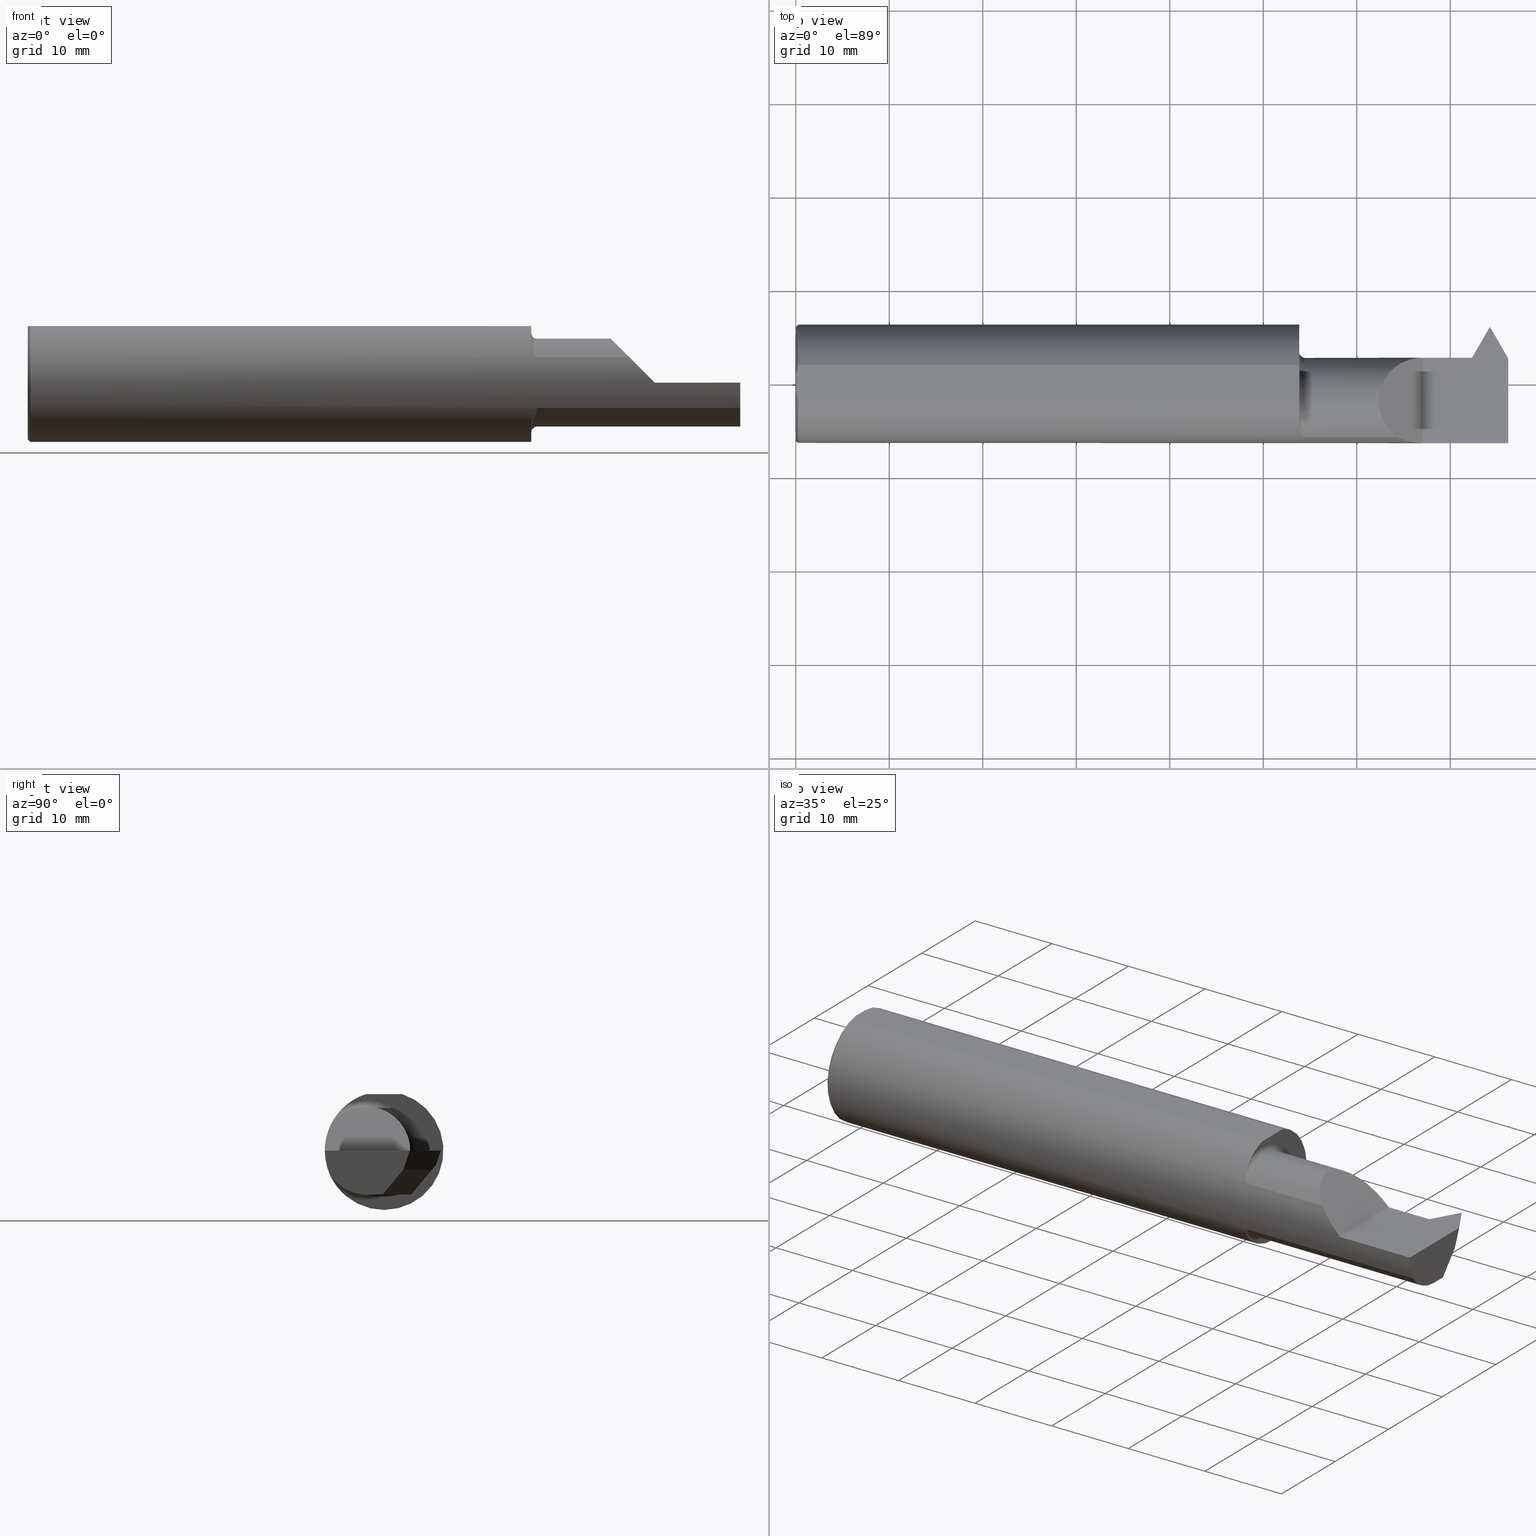
[diagram: canonical four-view strip — front | top / right | iso, engineering-drawing reading convention]
A machine part, canonical four-view strip (front | top / right | iso — engineering-drawing reading convention). The complete STEP part file that produces these views, byte-faithful:
ISO-10303-21;
HEADER;
FILE_DESCRIPTION (( 'STEP AP203' ),
    '1' );
FILE_NAME ('230505-TT490750.STEP',
    '2025-04-22T22:14:36',
    ( '' ),
    ( '' ),
    'SwSTEP 2.0',
    'SolidWorks 2024',
    '' );
FILE_SCHEMA (( 'CONFIG_CONTROL_DESIGN' ));
ENDSEC;

DATA;
#1 = CARTESIAN_POINT ( 'NONE',  ( 2.120000000000000551, -0.07485000000000026354, 0.000000000000000000 ) ) ;
#2 = EDGE_CURVE ( 'NONE', #660, #132, #169, .T. ) ;
#3 = CARTESIAN_POINT ( 'NONE',  ( 3.000000000000000444, -0.006496373662697019387, -0.1850000000000003586 ) ) ;
#4 = DIRECTION ( 'NONE',  ( -1.000000000000000000, -0.000000000000000000, -0.000000000000000000 ) ) ;
#5 = DIRECTION ( 'NONE',  ( -0.000000000000000000, 0.000000000000000000, 1.000000000000000000 ) ) ;
#6 = VERTEX_POINT ( 'NONE', #3 ) ;
#7 = ORIENTED_EDGE ( 'NONE', *, *, #142, .F. ) ;
#8 = CARTESIAN_POINT ( 'NONE',  ( 2.868475339886197073, -2.742707491892450111, 0.2291924993191829796 ) ) ;
#9 = CARTESIAN_POINT ( 'NONE',  ( 2.120000000000000551, -0.07485000000000026354, 0.000000000000000000 ) ) ;
#10 = CARTESIAN_POINT ( 'NONE',  ( 2.930565698496821359, 0.2018728256024819034, -0.07999999999999854450 ) ) ;
#11 = VERTEX_POINT ( 'NONE', #284 ) ;
#12 = FACE_OUTER_BOUND ( 'NONE', #684, .T. ) ;
#13 = CARTESIAN_POINT ( 'NONE',  ( 2.145000000000000018, -0.07485000000000026354, 0.000000000000000000 ) ) ;
#14 = CIRCLE ( 'NONE', #904, 0.2100000000000000755 ) ;
#15 = EDGE_CURVE ( 'NONE', #638, #866, #78, .T. ) ;
#16 = CARTESIAN_POINT ( 'NONE',  ( 2.123067695838076308, -0.1933460832554989295, -0.1585269497938188166 ) ) ;
#17 = ADVANCED_FACE ( 'NONE', ( #653 ), #858, .F. ) ;
#18 = PLANE ( 'NONE',  #303 ) ;
#19 = CARTESIAN_POINT ( 'NONE',  ( 2.145000000000000018, -0.2258019038076143625, -0.1069510296203682181 ) ) ;
#20 = ORIENTED_EDGE ( 'NONE', *, *, #164, .T. ) ;
#21 = CARTESIAN_POINT ( 'NONE',  ( 0.009999999999999927350, 0.000000000000000000, -0.2498499999999999888 ) ) ;
#22 = CIRCLE ( 'NONE', #400, 0.02499999999999993894 ) ;
#23 = CARTESIAN_POINT ( 'NONE',  ( 0.001983148254845710189, -0.04629825796642594860, 0.2378499999999998671 ) ) ;
#24 = AXIS2_PLACEMENT_3D ( 'NONE', #790, #63, #279 ) ;
#25 = AXIS2_PLACEMENT_3D ( 'NONE', #875, #27, #867 ) ;
#26 = CARTESIAN_POINT ( 'NONE',  ( 2.923000000000000487, 0.2149769997937226729, -0.07999999999999912736 ) ) ;
#27 = DIRECTION ( 'NONE',  ( 1.000000000000000000, 0.000000000000000000, 0.000000000000000000 ) ) ;
#28 = CARTESIAN_POINT ( 'NONE',  ( 2.640000000000000124, -0.2498499999999999610, 1.053196247266722782E-16 ) ) ;
#29 = CARTESIAN_POINT ( 'NONE',  ( 2.121924696059274140, -0.1871283507626237963, -0.1658250778734007835 ) ) ;
#30 = ORIENTED_EDGE ( 'NONE', *, *, #716, .T. ) ;
#31 = CARTESIAN_POINT ( 'NONE',  ( 2.964295610323778973, -0.6270319774222954390, -1.168708704524939801 ) ) ;
#32 = EDGE_CURVE ( 'NONE', #866, #779, #783, .T. ) ;
#33 = ORIENTED_EDGE ( 'NONE', *, *, #383, .F. ) ;
#34 = CARTESIAN_POINT ( 'NONE',  ( 2.143766764954792237, -0.2258019038076143348, -0.1069510296203683153 ) ) ;
#35 = ORIENTED_EDGE ( 'NONE', *, *, #487, .T. ) ;
#36 = CARTESIAN_POINT ( 'NONE',  ( 2.145000000000000018, -0.07485000000000026354, 0.000000000000000000 ) ) ;
#37 = ORIENTED_EDGE ( 'NONE', *, *, #178, .F. ) ;
#38 = AXIS2_PLACEMENT_3D ( 'NONE', #519, #236, #798 ) ;
#39 = DIRECTION ( 'NONE',  ( 0.001527157455367987148, -0.3090166340284846713, -0.9510554072628009115 ) ) ;
#40 = VECTOR ( 'NONE', #723, 39.37007874015748854 ) ;
#41 = ORIENTED_EDGE ( 'NONE', *, *, #311, .T. ) ;
#42 = CARTESIAN_POINT ( 'NONE',  ( 0.000000000000000000, 0.2498499999999998500, 0.2378499999999998671 ) ) ;
#43 = DIRECTION ( 'NONE',  ( -0.4999999999999968359, -0.8660254037844405950, 0.000000000000000000 ) ) ;
#44 = PERSON_AND_ORGANIZATION ( #524, #528 ) ;
#45 = VERTEX_POINT ( 'NONE', #213 ) ;
#46 = PERSON_AND_ORGANIZATION ( #524, #528 ) ;
#47 = CARTESIAN_POINT ( 'NONE',  ( 2.923000000000000487, 0.2149769997937226729, -0.07999999999999912736 ) ) ;
#48 = CARTESIAN_POINT ( 'NONE',  ( 2.120000000000000551, -0.1598366399465592502, 0.1920345568656693092 ) ) ;
#49 = ADVANCED_FACE ( 'NONE', ( #507 ), #435, .T. ) ;
#50 = PERSON_AND_ORGANIZATION ( #524, #528 ) ;
#51 = ADVANCED_FACE ( 'NONE', ( #313 ), #360, .T. ) ;
#52 = ORIENTED_EDGE ( 'NONE', *, *, #881, .F. ) ;
#53 = EDGE_CURVE ( 'NONE', #469, #461, #367, .T. ) ;
#54 = DIRECTION ( 'NONE',  ( 1.000000000000000000, 0.000000000000000000, -0.000000000000000000 ) ) ;
#55 = CIRCLE ( 'NONE', #665, 0.1850000000000001643 ) ;
#56 = EDGE_LOOP ( 'NONE', ( #393, #499, #465, #201 ) ) ;
#57 = CARTESIAN_POINT ( 'NONE',  ( 2.853001020151782363, 0.1007937133637520494, -0.05808860435397016075 ) ) ;
#58 = VECTOR ( 'NONE', #757, 39.37007874015748143 ) ;
#59 = ORIENTED_EDGE ( 'NONE', *, *, #562, .T. ) ;
#60 = DIRECTION ( 'NONE',  ( 0.000000000000000000, 1.000000000000000000, 0.000000000000000000 ) ) ;
#61 = ORIENTED_EDGE ( 'NONE', *, *, #806, .T. ) ;
#62 = AXIS2_PLACEMENT_3D ( 'NONE', #9, #514, #80 ) ;
#63 = DIRECTION ( 'NONE',  ( -0.7071067811865441310, 0.000000000000000000, -0.7071067811865509034 ) ) ;
#64 = AXIS2_PLACEMENT_3D ( 'NONE', #141, #726, #843 ) ;
#65 = ORIENTED_EDGE ( 'NONE', *, *, #870, .F. ) ;
#66 = CARTESIAN_POINT ( 'NONE',  ( 2.855038634497241823, 0.04932020012937191056, -0.1371377460797418013 ) ) ;
#67 = CIRCLE ( 'NONE', #25, 0.1850000000000002476 ) ;
#68 = DIRECTION ( 'NONE',  ( 0.000000000000000000, 0.3066215341816608819, 0.9518315159607212417 ) ) ;
#69 = EDGE_LOOP ( 'NONE', ( #471, #338, #295, #878 ) ) ;
#70 = LOCAL_TIME ( 15, 14, 36.00000000000000000, #346 ) ;
#71 = CARTESIAN_POINT ( 'NONE',  ( 2.145000000000000018, -0.07485000000000022191, -0.2100000000000000755 ) ) ;
#72 = CARTESIAN_POINT ( 'NONE',  ( 2.145000000000000018, -0.07485000000000024967, 0.000000000000000000 ) ) ;
#73 = ORIENTED_EDGE ( 'NONE', *, *, #850, .T. ) ;
#74 = ORIENTED_EDGE ( 'NONE', *, *, #387, .T. ) ;
#75 = FACE_OUTER_BOUND ( 'NONE', #69, .T. ) ;
#76 = DIRECTION ( 'NONE',  ( 0.000000000000000000, 0.000000000000000000, -1.000000000000000000 ) ) ;
#77 = LINE ( 'NONE', #578, #827 ) ;
#78 = LINE ( 'NONE', #369, #40 ) ;
#79 = FACE_BOUND ( 'NONE', #389, .T. ) ;
#80 = DIRECTION ( 'NONE',  ( 0.000000000000000000, 0.000000000000000000, 1.000000000000000000 ) ) ;
#81 = CARTESIAN_POINT ( 'NONE',  ( 0.000000000000000000, 0.000000000000000000, 0.000000000000000000 ) ) ;
#82 = EDGE_CURVE ( 'NONE', #287, #190, #884, .T. ) ;
#83 = DIRECTION ( 'NONE',  ( 0.000000000000000000, 0.000000000000000000, 1.000000000000000000 ) ) ;
#84 = DIRECTION ( 'NONE',  ( -0.9872754118385365096, 0.000000000000000000, 0.1590196880233645527 ) ) ;
#85 = CARTESIAN_POINT ( 'NONE',  ( -3.937007874019685528E-05, 0.2381499999999999451, 1.077689183249670531E-16 ) ) ;
#86 = ORIENTED_EDGE ( 'NONE', *, *, #247, .F. ) ;
#87 = CARTESIAN_POINT ( 'NONE',  ( 3.043193708807416797, -0.07485000000000026354, -0.1850000000000003031 ) ) ;
#88 = CARTESIAN_POINT ( 'NONE',  ( 2.566617523761941744, -0.2417016428557104135, 0.07338247623805806141 ) ) ;
#89 = LINE ( 'NONE', #802, #229 ) ;
#90 = ORIENTED_EDGE ( 'NONE', *, *, #642, .T. ) ;
#91 = CARTESIAN_POINT ( 'NONE',  ( 2.120000000000000551, -0.07485000000000024967, 0.2100000000000000755 ) ) ;
#92 = CARTESIAN_POINT ( 'NONE',  ( 0.000000000000000000, -0.03090954545120560767, 0.2378499999999998671 ) ) ;
#93 = AXIS2_PLACEMENT_3D ( 'NONE', #8, #657, #450 ) ;
#94 = FACE_OUTER_BOUND ( 'NONE', #769, .T. ) ;
#95 = VERTEX_POINT ( 'NONE', #529 ) ;
#96 = EDGE_CURVE ( 'NONE', #302, #473, #156, .T. ) ;
#97 = EDGE_LOOP ( 'NONE', ( #327, #208, #912, #619, #901, #149 ) ) ;
#98 = AXIS2_PLACEMENT_3D ( 'NONE', #621, #344, #54 ) ;
#99 = LINE ( 'NONE', #812, #797 ) ;
#100 = ORIENTED_EDGE ( 'NONE', *, *, #536, .T. ) ;
#101 = DIRECTION ( 'NONE',  ( 0.000000000000000000, -1.406552993276532194E-16, 1.000000000000000000 ) ) ;
#102 = ORIENTED_EDGE ( 'NONE', *, *, #747, .T. ) ;
#103 = PLANE ( 'NONE',  #343 ) ;
#104 = ORIENTED_EDGE ( 'NONE', *, *, #142, .T. ) ;
#105 = PERSON_AND_ORGANIZATION_ROLE ( 'design_supplier' ) ;
#106 = ORIENTED_EDGE ( 'NONE', *, *, #486, .F. ) ;
#107 = EDGE_CURVE ( 'NONE', #364, #616, #446, .T. ) ;
#108 = AXIS2_PLACEMENT_3D ( 'NONE', #910, #368, #5 ) ;
#109 = CARTESIAN_POINT ( 'NONE',  ( 2.915434301503179171, 0.2186548182260321382, -0.05999999999999271194 ) ) ;
#110 = CARTESIAN_POINT ( 'NONE',  ( 2.855038634497241823, 0.09726446179118487800, -0.07999999999999912736 ) ) ;
#111 = APPROVAL_STATUS ( 'not_yet_approved' ) ;
#112 = VERTEX_POINT ( 'NONE', #217 ) ;
#113 = CARTESIAN_POINT ( 'NONE',  ( 3.000000000000000444, -0.2258019038076141682, -0.1069510296203685096 ) ) ;
#114 = LOCAL_TIME ( 15, 14, 36.00000000000000000, #181 ) ;
#115 = CARTESIAN_POINT ( 'NONE',  ( 2.533048970379631282, -0.2258019038076143903, 0.1069510296203681071 ) ) ;
#116 = APPLICATION_PROTOCOL_DEFINITION ( 'international standard', 'config_control_design', 1994, #672 ) ;
#117 = VERTEX_POINT ( 'NONE', #306 ) ;
#118 = EDGE_CURVE ( 'NONE', #302, #6, #442, .T. ) ;
#119 = CARTESIAN_POINT ( 'NONE',  ( 2.143775935477924666, -0.2258019038086054586, 0.1069510296182757531 ) ) ;
#120 = ORIENTED_EDGE ( 'NONE', *, *, #682, .T. ) ;
#121 = CARTESIAN_POINT ( 'NONE',  ( 2.145000000000000018, -0.2258019038076144458, 0.1069510296203681765 ) ) ;
#122 = ADVANCED_FACE ( 'NONE', ( #658 ), #18, .F. ) ;
#123 = VERTEX_POINT ( 'NONE', #146 ) ;
#124 = APPROVAL_DATE_TIME ( #631, #472 ) ;
#125 = AXIS2_PLACEMENT_3D ( 'NONE', #579, #225, #848 ) ;
#126 = CARTESIAN_POINT ( 'NONE',  ( 2.139912704619970629, -0.2245351419255227909, 0.1095897952907190220 ) ) ;
#127 = VECTOR ( 'NONE', #39, 39.37007874015748854 ) ;
#128 = PRODUCT_RELATED_PRODUCT_CATEGORY ( 'detail', '', ( #411 ) ) ;
#129 = EDGE_LOOP ( 'NONE', ( #176, #563, #424, #35 ) ) ;
#130 = CALENDAR_DATE ( 2025, 22, 4 ) ;
#131 = CARTESIAN_POINT ( 'NONE',  ( 0.000000000000000000, 0.03090954545120574992, 0.2378499999999998671 ) ) ;
#132 = VERTEX_POINT ( 'NONE', #804 ) ;
#133 = CARTESIAN_POINT ( 'NONE',  ( 2.915434301503179615, 0.2018728256024810153, -0.07999999999999912736 ) ) ;
#134 = DIRECTION ( 'NONE',  ( 0.000000000000000000, -0.6427876096865378086, -0.7660444431189791237 ) ) ;
#135 =( BOUNDED_CURVE ( )  B_SPLINE_CURVE ( 3, ( #580, #355, #913, #708 ),
 .UNSPECIFIED., .F., .T. ) 
 B_SPLINE_CURVE_WITH_KNOTS ( ( 4, 4 ),
 ( 0.000000000000000000, 1.570796326794895892 ),
 .UNSPECIFIED. ) 
 CURVE ( )  GEOMETRIC_REPRESENTATION_ITEM ( )  RATIONAL_B_SPLINE_CURVE ( ( 1.000000000000000000, 0.8047378541243652705, 0.8047378541243652705, 1.000000000000000000 ) ) 
 REPRESENTATION_ITEM ( '' )  );
#136 = AXIS2_PLACEMENT_3D ( 'NONE', #722, #224, #505 ) ;
#137 = ORIENTED_EDGE ( 'NONE', *, *, #419, .F. ) ;
#138 = CARTESIAN_POINT ( 'NONE',  ( 2.867106361286630545, -0.07742080608006782216, -0.1850000000000003031 ) ) ;
#139 = AXIS2_PLACEMENT_3D ( 'NONE', #731, #172, #666 ) ;
#140 = ADVANCED_FACE ( 'NONE', ( #163 ), #863, .F. ) ;
#141 = CARTESIAN_POINT ( 'NONE',  ( 2.145000000000000018, -0.07485000000000024967, 0.000000000000000000 ) ) ;
#142 = EDGE_CURVE ( 'NONE', #11, #833, #375, .T. ) ;
#143 = CARTESIAN_POINT ( 'NONE',  ( 2.120000000000000551, 0.2381499999999998618, 2.574479715540877281E-16 ) ) ;
#144 = VECTOR ( 'NONE', #234, 39.37007874015748143 ) ;
#145 = CARTESIAN_POINT ( 'NONE',  ( 0.000000000000000000, 0.000000000000000000, -0.2398500000000001742 ) ) ;
#146 = CARTESIAN_POINT ( 'NONE',  ( 2.120000000000000551, -0.07485000000000022191, -0.2100000000000000755 ) ) ;
#147 = ORIENTED_EDGE ( 'NONE', *, *, #211, .T. ) ;
#148 = DIRECTION ( 'NONE',  ( 0.000000000000000000, 0.000000000000000000, 1.000000000000000000 ) ) ;
#149 = ORIENTED_EDGE ( 'NONE', *, *, #107, .T. ) ;
#150 = CARTESIAN_POINT ( 'NONE',  ( 2.856779504692432248, 0.06187106706801930034, -0.1257736708771146628 ) ) ;
#151 = EDGE_CURVE ( 'NONE', #484, #820, #634, .T. ) ;
#152 = DIRECTION ( 'NONE',  ( -1.000000000000000000, -0.000000000000000000, -0.000000000000000000 ) ) ;
#153 = CARTESIAN_POINT ( 'NONE',  ( 2.640000000000000124, 0.1101499999999998869, 2.574479715540877281E-16 ) ) ;
#154 = CIRCLE ( 'NONE', #272, 0.2398500000000001742 ) ;
#155 = CARTESIAN_POINT ( 'NONE',  ( 2.835007723244581168, 0.1101499999999999146, -0.01978022500079915438 ) ) ;
#156 = LINE ( 'NONE', #584, #183 ) ;
#157 = CARTESIAN_POINT ( 'NONE',  ( 2.136600878232106204, -0.2222589477840662131, -0.1141522670044877730 ) ) ;
#158 = APPROVAL ( #256, 'UNSPECIFIED' ) ;
#159 = DIRECTION ( 'NONE',  ( 0.000000000000000000, 0.000000000000000000, 1.000000000000000000 ) ) ;
#160 = CARTESIAN_POINT ( 'NONE',  ( 2.137712610578065942, -0.2232268177254527475, -0.1122435923601498714 ) ) ;
#161 = ORIENTED_EDGE ( 'NONE', *, *, #317, .T. ) ;
#162 = CARTESIAN_POINT ( 'NONE',  ( 3.000000000000000444, -0.2498499999999999888, 0.000000000000000000 ) ) ;
#163 = FACE_OUTER_BOUND ( 'NONE', #730, .T. ) ;
#164 = EDGE_CURVE ( 'NONE', #363, #117, #457, .T. ) ;
#165 = LINE ( 'NONE', #860, #249 ) ;
#166 = ORIENTED_EDGE ( 'NONE', *, *, #210, .T. ) ;
#167 = LENGTH_MEASURE_WITH_UNIT ( LENGTH_MEASURE( 0.02539999999999999897 ), #523 );
#168 = ORIENTED_EDGE ( 'NONE', *, *, #349, .T. ) ;
#169 = B_SPLINE_CURVE_WITH_KNOTS ( 'NONE', 3,
 ( #791, #292, #587, #643 ),
 .UNSPECIFIED., .F., .F.,
 ( 4, 4 ),
 ( 0.01593449416844765903, 0.01712021724825598876 ),
 .UNSPECIFIED. ) ;
#170 = CARTESIAN_POINT ( 'NONE',  ( 2.120000000000000551, -0.07485000000000026354, 0.000000000000000000 ) ) ;
#171 = EDGE_LOOP ( 'NONE', ( #354, #808, #242, #540 ) ) ;
#172 = DIRECTION ( 'NONE',  ( 1.000000000000000000, 0.000000000000000000, 0.000000000000000000 ) ) ;
#173 = ORIENTED_EDGE ( 'NONE', *, *, #774, .T. ) ;
#174 = VECTOR ( 'NONE', #908, 39.37007874015748143 ) ;
#175 = CARTESIAN_POINT ( 'NONE',  ( 2.126157214307796472, -0.2047183078027748626, -0.1435406429257672645 ) ) ;
#176 = ORIENTED_EDGE ( 'NONE', *, *, #774, .F. ) ;
#177 = ORIENTED_EDGE ( 'NONE', *, *, #290, .T. ) ;
#178 = EDGE_CURVE ( 'NONE', #820, #503, #22, .T. ) ;
#179 = DIRECTION ( 'NONE',  ( 0.4999999999999957812, -0.8660254037844409281, 0.000000000000000000 ) ) ;
#180 = CARTESIAN_POINT ( 'NONE',  ( 2.120407510365825310, -0.1741966726826632283, 0.1793628509906920465 ) ) ;
#181 = COORDINATED_UNIVERSAL_TIME_OFFSET ( 8, 0, .BEHIND. ) ;
#182 = ORIENTED_EDGE ( 'NONE', *, *, #868, .F. ) ;
#183 = VECTOR ( 'NONE', #297, 39.37007874015748143 ) ;
#184 = ADVANCED_FACE ( 'NONE', ( #385 ), #426, .T. ) ;
#185 = VECTOR ( 'NONE', #134, 39.37007874015748854 ) ;
#186 = CARTESIAN_POINT ( 'NONE',  ( 2.924596345014836007, 0.2186548182260260043, -0.06000000000000004635 ) ) ;
#187 = AXIS2_PLACEMENT_3D ( 'NONE', #574, #445, #83 ) ;
#188 = CARTESIAN_POINT ( 'NONE',  ( 2.126159583778305162, -0.2047174793402739279, 0.1435375904728281027 ) ) ;
#189 = APPROVAL_DATE_TIME ( #555, #158 ) ;
#190 = VERTEX_POINT ( 'NONE', #366 ) ;
#191 = AXIS2_PLACEMENT_3D ( 'NONE', #87, #101, #819 ) ;
#192 = CARTESIAN_POINT ( 'NONE',  ( 2.121956565677478146, -0.1873305359567935535, 0.1655982590106568064 ) ) ;
#193 = ORIENTED_EDGE ( 'NONE', *, *, #504, .F. ) ;
#194 = ADVANCED_FACE ( 'NONE', ( #650 ), #289, .T. ) ;
#195 = CARTESIAN_POINT ( 'NONE',  ( 2.120000000000000551, -0.07485000000000026354, 0.000000000000000000 ) ) ;
#196 = ORIENTED_EDGE ( 'NONE', *, *, #645, .T. ) ;
#197 = COORDINATED_UNIVERSAL_TIME_OFFSET ( 8, 0, .BEHIND. ) ;
#198 = EDGE_LOOP ( 'NONE', ( #90, #675, #556, #551, #768, #397 ) ) ;
#199 = CC_DESIGN_PERSON_AND_ORGANIZATION_ASSIGNMENT ( #899, #105, ( #760 ) ) ;
#200 = DIRECTION ( 'NONE',  ( -1.000000000000000000, -0.000000000000000000, -0.000000000000000000 ) ) ;
#201 = ORIENTED_EDGE ( 'NONE', *, *, #383, .T. ) ;
#202 = DATE_TIME_ROLE ( 'classification_date' ) ;
#203 = CARTESIAN_POINT ( 'NONE',  ( 2.855038634497241823, 0.09726446179118487800, -0.07999999999999912736 ) ) ;
#204 = EDGE_CURVE ( 'NONE', #461, #630, #298, .T. ) ;
#205 = ORIENTED_EDGE ( 'NONE', *, *, #204, .T. ) ;
#206 = DIRECTION ( 'NONE',  ( 3.225289538412902656E-15, 0.6427876096865345890, 0.7660444431189818992 ) ) ;
#207 = CARTESIAN_POINT ( 'NONE',  ( 2.120000000000000551, 0.000000000000000000, 0.000000000000000000 ) ) ;
#208 = ORIENTED_EDGE ( 'NONE', *, *, #704, .F. ) ;
#209 = PLANE ( 'NONE',  #829 ) ;
#210 = EDGE_CURVE ( 'NONE', #743, #190, #154, .T. ) ;
#211 = EDGE_CURVE ( 'NONE', #473, #841, #99, .T. ) ;
#212 = CARTESIAN_POINT ( 'NONE',  ( 2.921500000000000430, 0.2381499999999999451, 0.000000000000000000 ) ) ;
#213 = CARTESIAN_POINT ( 'NONE',  ( 2.930565698496820470, 0.1137673643288671099, -0.1850000000000002753 ) ) ;
#214 = ADVANCED_FACE ( 'NONE', ( #394 ), #661, .T. ) ;
#215 = DIRECTION ( 'NONE',  ( -0.000000000000000000, 1.000000000000000000, 1.224646799147353207E-16 ) ) ;
#216 = VECTOR ( 'NONE', #384, 39.37007874015748854 ) ;
#217 = CARTESIAN_POINT ( 'NONE',  ( 2.828837422171168736, 0.1007937133637520355, -0.05808860435397019545 ) ) ;
#218 = B_SPLINE_CURVE_WITH_KNOTS ( 'NONE', 3,
 ( #19, #34, #237, #742, #668, #160, #157, #321, #245, #609, #175, #16, #29, #530, #882, #453 ),
 .UNSPECIFIED., .F., .F.,
 ( 4, 2, 2, 2, 2, 2, 2, 4 ),
 ( 1.967731640926042564E-07, 9.266832530625347989E-05, 0.0001851398774484143731, 0.0003700829817327370812, 0.0007399691903013736610, 0.001479741607438647038, 0.002219514024575919113, 0.002959286441713191405 ),
 .UNSPECIFIED. ) ;
#219 = DIRECTION ( 'NONE',  ( 0.000000000000000000, -0.9872754118385365096, 0.1590196880233645527 ) ) ;
#220 = ORIENTED_EDGE ( 'NONE', *, *, #627, .F. ) ;
#221 = AXIS2_PLACEMENT_3D ( 'NONE', #110, #686, #43 ) ;
#222 = DIRECTION ( 'NONE',  ( 0.000000000000000000, 0.000000000000000000, -1.000000000000000000 ) ) ;
#223 = CARTESIAN_POINT ( 'NONE',  ( 3.000000000000000444, 0.000000000000000000, 0.000000000000000000 ) ) ;
#224 = DIRECTION ( 'NONE',  ( 1.000000000000000000, 0.000000000000000000, 0.000000000000000000 ) ) ;
#225 = DIRECTION ( 'NONE',  ( -0.8550055871839193911, -0.4936377059192631478, 0.1590196880233645527 ) ) ;
#226 = DIRECTION ( 'NONE',  ( -1.000000000000000000, -0.000000000000000000, -0.000000000000000000 ) ) ;
#227 = DIRECTION ( 'NONE',  ( 0.000000000000000000, 0.000000000000000000, -1.000000000000000000 ) ) ;
#228 = FACE_OUTER_BOUND ( 'NONE', #129, .T. ) ;
#229 = VECTOR ( 'NONE', #458, 39.37007874015748143 ) ;
#230 = CIRCLE ( 'NONE', #709, 0.2498499999999999888 ) ;
#231 = DIRECTION ( 'NONE',  ( 0.4999999999999943379, 0.8660254037844418162, 0.000000000000000000 ) ) ;
#232 = DIRECTION ( 'NONE',  ( -1.000000000000000000, -0.000000000000000000, -0.000000000000000000 ) ) ;
#233 = ORIENTED_EDGE ( 'NONE', *, *, #448, .T. ) ;
#234 = DIRECTION ( 'NONE',  ( 0.2228878682400366462, 0.6266177018952000521, 0.7467738974167417165 ) ) ;
#235 = CC_DESIGN_APPROVAL ( #158, ( #329 ) ) ;
#236 = DIRECTION ( 'NONE',  ( 1.000000000000000000, 0.000000000000000000, 0.000000000000000000 ) ) ;
#237 = CARTESIAN_POINT ( 'NONE',  ( 2.142621204867376505, -0.2255690416234743534, -0.1074438938734543214 ) ) ;
#238 = ORIENTED_EDGE ( 'NONE', *, *, #850, .F. ) ;
#239 = CARTESIAN_POINT ( 'NONE',  ( 2.921500000000000430, 0.2381499999999999451, 0.000000000000000000 ) ) ;
#240 = ORIENTED_EDGE ( 'NONE', *, *, #32, .T. ) ;
#241 = DIRECTION ( 'NONE',  ( -0.000000000000000000, 1.000000000000000000, -0.000000000000000000 ) ) ;
#242 = ORIENTED_EDGE ( 'NONE', *, *, #557, .T. ) ;
#243 = CARTESIAN_POINT ( 'NONE',  ( 2.776269281659328403, -0.1893699351961507793, -0.5462649657582518969 ) ) ;
#244 = ORIENTED_EDGE ( 'NONE', *, *, #211, .F. ) ;
#245 = CARTESIAN_POINT ( 'NONE',  ( 2.132072761667481053, -0.2169747454531466835, -0.1239680304230237062 ) ) ;
#246 = ORIENTED_EDGE ( 'NONE', *, *, #716, .F. ) ;
#247 = EDGE_CURVE ( 'NONE', #595, #112, #89, .T. ) ;
#248 = EDGE_LOOP ( 'NONE', ( #527, #835, #776, #74, #410 ) ) ;
#249 = VECTOR ( 'NONE', #241, 39.37007874015748143 ) ;
#250 = CARTESIAN_POINT ( 'NONE',  ( 2.924493179360347472, 0.2395301400111146672, 0.004247634191204774368 ) ) ;
#251 = DIRECTION ( 'NONE',  ( 1.000000000000000000, -0.000000000000000000, -0.000000000000000000 ) ) ;
#252 = APPROVAL_ROLE ( '' ) ;
#253 = ORIENTED_EDGE ( 'NONE', *, *, #562, .F. ) ;
#254 = CARTESIAN_POINT ( 'NONE',  ( 2.865700438777407211, 0.02762578723117174034, -0.1850000000000003031 ) ) ;
#255 = DIRECTION ( 'NONE',  ( 1.000000000000000000, 0.000000000000000000, 0.000000000000000000 ) ) ;
#256 = APPROVAL_STATUS ( 'not_yet_approved' ) ;
#257 = ORIENTED_EDGE ( 'NONE', *, *, #444, .F. ) ;
#258 = APPROVAL_ROLE ( '' ) ;
#259 = TOROIDAL_SURFACE ( 'NONE', #781, 0.2100000000000000755, 0.02499999999999992853 ) ;
#260 = VECTOR ( 'NONE', #517, 39.37007874015748143 ) ;
#261 = CARTESIAN_POINT ( 'NONE',  ( 2.123087269985822090, -0.1934276160908514341, 0.1584236205860445057 ) ) ;
#262 = DIRECTION ( 'NONE',  ( 1.000000000000000000, 0.000000000000000000, 0.000000000000000000 ) ) ;
#263 = ORIENTED_EDGE ( 'NONE', *, *, #679, .F. ) ;
#264 = ADVANCED_FACE ( 'NONE', ( #388 ), #373, .T. ) ;
#265 = PERSON_AND_ORGANIZATION_ROLE ( 'classification_officer' ) ;
#266 = TOROIDAL_SURFACE ( 'NONE', #744, 0.2100000000000000755, 0.02499999999999992853 ) ;
#267 = APPROVAL_PERSON_ORGANIZATION ( #44, #158, #890 ) ;
#268 = CARTESIAN_POINT ( 'NONE',  ( 2.847599165543729605, 0.1101499999999998869, 0.000000000000000000 ) ) ;
#269 = EDGE_LOOP ( 'NONE', ( #830, #100, #104, #253, #838, #626 ) ) ;
#270 = CARTESIAN_POINT ( 'NONE',  ( 2.145000000000000018, -0.07485000000000026354, 0.000000000000000000 ) ) ;
#271 = ORIENTED_EDGE ( 'NONE', *, *, #907, .T. ) ;
#272 = AXIS2_PLACEMENT_3D ( 'NONE', #81, #729, #872 ) ;
#273 = ADVANCED_FACE ( 'NONE', ( #591 ), #537, .F. ) ;
#274 = VECTOR ( 'NONE', #68, 39.37007874015748143 ) ;
#275 = CARTESIAN_POINT ( 'NONE',  ( 2.921403654985164078, 0.2186548182260259765, -0.06000000000000002554 ) ) ;
#276 = ADVANCED_FACE ( 'NONE', ( #94 ), #605, .T. ) ;
#277 = ORIENTED_EDGE ( 'NONE', *, *, #320, .T. ) ;
#278 = CARTESIAN_POINT ( 'NONE',  ( 0.000000000000000000, 0.000000000000000000, 0.000000000000000000 ) ) ;
#279 = DIRECTION ( 'NONE',  ( -0.7071067811865509034, 0.000000000000000000, 0.7071067811865441310 ) ) ;
#280 = VERTEX_POINT ( 'NONE', #380 ) ;
#281 = CARTESIAN_POINT ( 'NONE',  ( 2.838193708807416282, 0.1101499999999998869, 0.000000000000000000 ) ) ;
#282 = EDGE_CURVE ( 'NONE', #117, #280, #218, .T. ) ;
#283 = DIRECTION ( 'NONE',  ( 0.000000000000000000, -0.1590196880233645527, -0.9872754118385365096 ) ) ;
#284 = CARTESIAN_POINT ( 'NONE',  ( 3.000000000000000444, 0.1073801640285483444, 0.000000000000000000 ) ) ;
#285 = CARTESIAN_POINT ( 'NONE',  ( 2.855038634497241823, 0.09726446179118487800, -0.07999999999999912736 ) ) ;
#286 = CARTESIAN_POINT ( 'NONE',  ( 2.120000000000000551, 0.000000000000000000, 0.000000000000000000 ) ) ;
#287 = VERTEX_POINT ( 'NONE', #816 ) ;
#288 = CARTESIAN_POINT ( 'NONE',  ( 2.930565698496820914, 0.2186548182260199258, -0.06000000000000724892 ) ) ;
#289 = CYLINDRICAL_SURFACE ( 'NONE', #62, 0.1850000000000001643 ) ;
#290 = EDGE_CURVE ( 'NONE', #573, #916, #807, .T. ) ;
#291 = CARTESIAN_POINT ( 'NONE',  ( 2.120000000000000551, -0.07650098038587548055, 0.2378499999999998671 ) ) ;
#292 = CARTESIAN_POINT ( 'NONE',  ( 0.002005502345409073024, 0.04647171987093980799, 0.2378499999999998671 ) ) ;
#293 = B_SPLINE_CURVE_WITH_KNOTS ( 'NONE', 3,
 ( #48, #764, #180, #192, #261, #188, #569, #488, #415, #420, #690, #126, #898, #405, #119, #121 ),
 .UNSPECIFIED., .F., .F.,
 ( 4, 2, 2, 2, 2, 2, 2, 4 ),
 ( 0.0007713084168120903309, 0.001497239385841620841, 0.002223170354871151135, 0.002949101323900681429, 0.003312066808415443757, 0.003493549550672820150, 0.003584290921801507913, 0.003675032292930194809 ),
 .UNSPECIFIED. ) ;
#294 = VECTOR ( 'NONE', #613, 39.37007874015748854 ) ;
#295 = ORIENTED_EDGE ( 'NONE', *, *, #466, .T. ) ;
#296 = CYLINDRICAL_SURFACE ( 'NONE', #386, 0.1850000000000001643 ) ;
#297 = DIRECTION ( 'NONE',  ( -1.000000000000000000, -0.000000000000000000, -0.000000000000000000 ) ) ;
#298 =( BOUNDED_CURVE ( )  B_SPLINE_CURVE ( 3, ( #541, #470, #737, #308 ),
 .UNSPECIFIED., .F., .T. ) 
 B_SPLINE_CURVE_WITH_KNOTS ( ( 4, 4 ),
 ( 5.328803974130450705, 6.283185307179586232 ),
 .UNSPECIFIED. ) 
 CURVE ( )  GEOMETRIC_REPRESENTATION_ITEM ( )  RATIONAL_B_SPLINE_CURVE ( ( 1.000000000000000000, 0.9255258083546842318, 0.9255258083546842318, 1.000000000000000000 ) ) 
 REPRESENTATION_ITEM ( '' )  );
#299 = CARTESIAN_POINT ( 'NONE',  ( 3.000000000000000444, -0.07485000000000026354, -0.1850000000000003031 ) ) ;
#300 = CARTESIAN_POINT ( 'NONE',  ( 2.838193708807416282, 0.1101499999999998869, 0.000000000000000000 ) ) ;
#301 = CARTESIAN_POINT ( 'NONE',  ( 2.145000000000000018, -0.07485000000000024967, 0.000000000000000000 ) ) ;
#302 = VERTEX_POINT ( 'NONE', #299 ) ;
#303 = AXIS2_PLACEMENT_3D ( 'NONE', #300, #84, #592 ) ;
#304 = CARTESIAN_POINT ( 'NONE',  ( 3.040396415626300808, -0.07646501797111975030, -0.1850000000000003031 ) ) ;
#305 = VECTOR ( 'NONE', #782, 39.37007874015748143 ) ;
#306 = CARTESIAN_POINT ( 'NONE',  ( 2.145000000000000018, -0.2258019038076143625, -0.1069510296203682181 ) ) ;
#307 = AXIS2_PLACEMENT_3D ( 'NONE', #71, #215, #854 ) ;
#308 = CARTESIAN_POINT ( 'NONE',  ( 2.454999999999998295, -0.07485000000000026354, 0.1850000000000001643 ) ) ;
#309 = ORIENTED_EDGE ( 'NONE', *, *, #2, .F. ) ;
#310 = CARTESIAN_POINT ( 'NONE',  ( 2.567644294575713274E-31, -0.2498499999999999610, 8.776635393889356229E-16 ) ) ;
#311 = EDGE_CURVE ( 'NONE', #469, #573, #165, .T. ) ;
#312 = AXIS2_PLACEMENT_3D ( 'NONE', #36, #809, #323 ) ;
#313 = FACE_OUTER_BOUND ( 'NONE', #576, .T. ) ;
#314 = ADVANCED_FACE ( 'NONE', ( #228 ), #266, .F. ) ;
#315 = CARTESIAN_POINT ( 'NONE',  ( 2.120000000000000551, 0.1101499999999998869, 2.574479715540877281E-16 ) ) ;
#316 = EDGE_LOOP ( 'NONE', ( #891, #147, #880, #496, #342, #177, #906, #86 ) ) ;
#317 = EDGE_CURVE ( 'NONE', #616, #95, #800, .T. ) ;
#318 = DIRECTION ( 'NONE',  ( -0.08326340333668322269, 0.5519774467243461213, 0.8296915715930013313 ) ) ;
#319 = EDGE_LOOP ( 'NONE', ( #494, #246 ) ) ;
#320 = EDGE_CURVE ( 'NONE', #190, #660, #328, .T. ) ;
#321 = CARTESIAN_POINT ( 'NONE',  ( 2.133599192740056605, -0.2192187664759579768, -0.1199465908399891534 ) ) ;
#322 = ORIENTED_EDGE ( 'NONE', *, *, #861, .T. ) ;
#323 = DIRECTION ( 'NONE',  ( 0.000000000000000000, 0.000000000000000000, 1.000000000000000000 ) ) ;
#324 = ORIENTED_EDGE ( 'NONE', *, *, #15, .T. ) ;
#325 = CARTESIAN_POINT ( 'NONE',  ( 2.855038634497241823, 0.09726446179118487800, -0.07999999999999912736 ) ) ;
#326 = PERSON_AND_ORGANIZATION ( #524, #528 ) ;
#327 = ORIENTED_EDGE ( 'NONE', *, *, #739, .F. ) ;
#328 = LINE ( 'NONE', #42, #545 ) ;
#329 = PRODUCT_DEFINITION ( 'UNKNOWN', '', #760, #533 ) ;
#330 =( BOUNDED_CURVE ( )  B_SPLINE_CURVE ( 3, ( #831, #693, #475, #57 ),
 .UNSPECIFIED., .F., .T. ) 
 B_SPLINE_CURVE_WITH_KNOTS ( ( 4, 4 ),
 ( 3.301290280147274547, 4.552691353827207799 ),
 .UNSPECIFIED. ) 
 CURVE ( )  GEOMETRIC_REPRESENTATION_ITEM ( )  RATIONAL_B_SPLINE_CURVE ( ( 1.000000000000000000, 0.8737020255688406900, 0.8737020255688406900, 1.000000000000000000 ) ) 
 REPRESENTATION_ITEM ( '' )  );
#331 = CARTESIAN_POINT ( 'NONE',  ( 2.145000000000000018, -0.07485000000000026354, 0.1850000000000001643 ) ) ;
#332 = CARTESIAN_POINT ( 'NONE',  ( 0.000000000000000000, 0.000000000000000000, 0.000000000000000000 ) ) ;
#333 = ORIENTED_EDGE ( 'NONE', *, *, #290, .F. ) ;
#334 = CARTESIAN_POINT ( 'NONE',  ( 3.000000000000000444, -0.2500000000000000555, 0.000000000000000000 ) ) ;
#335 = FACE_OUTER_BOUND ( 'NONE', #399, .T. ) ;
#336 = EDGE_CURVE ( 'NONE', #95, #6, #752, .T. ) ;
#337 = DATE_TIME_ROLE ( 'creation_date' ) ;
#338 = ORIENTED_EDGE ( 'NONE', *, *, #763, .F. ) ;
#339 = VECTOR ( 'NONE', #814, 39.37007874015748143 ) ;
#340 = LINE ( 'NONE', #482, #391 ) ;
#341 = ORIENTED_EDGE ( 'NONE', *, *, #747, .F. ) ;
#342 = ORIENTED_EDGE ( 'NONE', *, *, #703, .T. ) ;
#343 = AXIS2_PLACEMENT_3D ( 'NONE', #398, #481, #408 ) ;
#344 = DIRECTION ( 'NONE',  ( 0.000000000000000000, 0.000000000000000000, 1.000000000000000000 ) ) ;
#345 = ORIENTED_EDGE ( 'NONE', *, *, #53, .T. ) ;
#346 = COORDINATED_UNIVERSAL_TIME_OFFSET ( 8, 0, .BEHIND. ) ;
#347 = EDGE_CURVE ( 'NONE', #692, #623, #474, .T. ) ;
#348 = FACE_OUTER_BOUND ( 'NONE', #269, .T. ) ;
#349 = EDGE_CURVE ( 'NONE', #779, #364, #893, .T. ) ;
#350 = ORIENTED_EDGE ( 'NONE', *, *, #444, .T. ) ;
#351 = AXIS2_PLACEMENT_3D ( 'NONE', #594, #599, #377 ) ;
#352 = CIRCLE ( 'NONE', #596, 0.2498499999999999888 ) ;
#353 = CARTESIAN_POINT ( 'NONE',  ( 2.847599165543729605, 0.1101499999999998869, 0.000000000000000000 ) ) ;
#354 = ORIENTED_EDGE ( 'NONE', *, *, #647, .F. ) ;
#355 = CARTESIAN_POINT ( 'NONE',  ( 2.454999999999998295, 0.03352049096097719366, 0.1850000000000001643 ) ) ;
#356 = DIRECTION ( 'NONE',  ( -1.000000000000000000, -0.000000000000000000, -0.000000000000000000 ) ) ;
#357 = CIRCLE ( 'NONE', #312, 0.1850000000000001643 ) ;
#358 = ORIENTED_EDGE ( 'NONE', *, *, #96, .F. ) ;
#359 = DIRECTION ( 'NONE',  ( 0.000000000000000000, 0.000000000000000000, 1.000000000000000000 ) ) ;
#360 = CONICAL_SURFACE ( 'NONE', #38, 0.2398500000000001742, 0.7853981633974431720 ) ;
#361 = FACE_OUTER_BOUND ( 'NONE', #567, .T. ) ;
#362 = EDGE_CURVE ( 'NONE', #623, #788, #617, .T. ) ;
#363 = VERTEX_POINT ( 'NONE', #113 ) ;
#364 = VERTEX_POINT ( 'NONE', #186 ) ;
#365 = PLANE ( 'NONE',  #93 ) ;
#366 = CARTESIAN_POINT ( 'NONE',  ( 0.000000000000000000, -0.03090954545120560767, 0.2378499999999998671 ) ) ;
#367 =( BOUNDED_CURVE ( )  B_SPLINE_CURVE ( 3, ( #28, #509, #88, #604 ),
 .UNSPECIFIED., .F., .F. ) 
 B_SPLINE_CURVE_WITH_KNOTS ( ( 4, 4 ),
 ( 4.712388980384689674, 5.154735109466819232 ),
 .UNSPECIFIED. ) 
 CURVE ( )  GEOMETRIC_REPRESENTATION_ITEM ( )  RATIONAL_B_SPLINE_CURVE ( ( 1.000000000000000000, 0.9837605203333757986, 0.9837605203333757986, 1.000000000000000000 ) ) 
 REPRESENTATION_ITEM ( '' )  );
#368 = DIRECTION ( 'NONE',  ( -1.000000000000000000, 0.000000000000000000, -0.000000000000000000 ) ) ;
#369 = CARTESIAN_POINT ( 'NONE',  ( 2.921493186356977301, 0.2367712757400549373, -0.004243276957136915550 ) ) ;
#370 = LINE ( 'NONE', #145, #738 ) ;
#371 = CC_DESIGN_DATE_AND_TIME_ASSIGNMENT ( #477, #337, ( #329 ) ) ;
#372 = CARTESIAN_POINT ( 'NONE',  ( 2.120000000000000551, -0.07485000000000026354, 0.000000000000000000 ) ) ;
#373 = PLANE ( 'NONE',  #351 ) ;
#374 = DIRECTION ( 'NONE',  ( -1.000000000000000000, -0.000000000000000000, -0.000000000000000000 ) ) ;
#375 = LINE ( 'NONE', #223, #706 ) ;
#376 = ADVANCED_FACE ( 'NONE', ( #547 ), #103, .T. ) ;
#377 = DIRECTION ( 'NONE',  ( -0.4999999999999968359, -0.8660254037844405950, 0.000000000000000000 ) ) ;
#378 = ORIENTED_EDGE ( 'NONE', *, *, #763, .T. ) ;
#379 = CARTESIAN_POINT ( 'NONE',  ( 0.009999999999999927350, -0.07650098038587520299, 0.2378499999999998671 ) ) ;
#380 = CARTESIAN_POINT ( 'NONE',  ( 2.120000000000000551, -0.1598366399465592502, -0.1920345568656693092 ) ) ;
#381 = EDGE_LOOP ( 'NONE', ( #205, #402, #263, #766 ) ) ;
#382 = ADVANCED_FACE ( 'NONE', ( #689 ), #404, .F. ) ;
#383 = EDGE_CURVE ( 'NONE', #699, #692, #680, .T. ) ;
#384 = DIRECTION ( 'NONE',  ( -0.4999999999999957812, 0.8660254037844409281, 1.268685867247897525E-16 ) ) ;
#385 = FACE_OUTER_BOUND ( 'NONE', #824, .T. ) ;
#386 = AXIS2_PLACEMENT_3D ( 'NONE', #1, #226, #359 ) ;
#387 = EDGE_CURVE ( 'NONE', #779, #11, #887, .T. ) ;
#388 = FACE_OUTER_BOUND ( 'NONE', #56, .T. ) ;
#389 = EDGE_LOOP ( 'NONE', ( #30, #688 ) ) ;
#390 =( NAMED_UNIT ( * ) SI_UNIT ( $, .STERADIAN. ) SOLID_ANGLE_UNIT ( ) );
#391 = VECTOR ( 'NONE', #60, 39.37007874015748143 ) ;
#392 = AXIS2_PLACEMENT_3D ( 'NONE', #544, #885, #396 ) ;
#393 = ORIENTED_EDGE ( 'NONE', *, *, #347, .T. ) ;
#394 = FACE_OUTER_BOUND ( 'NONE', #489, .T. ) ;
#395 = ORIENTED_EDGE ( 'NONE', *, *, #642, .F. ) ;
#396 = DIRECTION ( 'NONE',  ( 0.000000000000000000, 0.000000000000000000, -1.000000000000000000 ) ) ;
#397 = ORIENTED_EDGE ( 'NONE', *, *, #452, .T. ) ;
#398 = CARTESIAN_POINT ( 'NONE',  ( 2.120000000000000551, 0.2498499999999999055, 0.000000000000000000 ) ) ;
#399 = EDGE_LOOP ( 'NONE', ( #350, #669, #608, #309, #741, #883 ) ) ;
#400 = AXIS2_PLACEMENT_3D ( 'NONE', #859, #736, #793 ) ;
#401 = SECURITY_CLASSIFICATION_LEVEL ( 'unclassified' ) ;
#402 = ORIENTED_EDGE ( 'NONE', *, *, #810, .T. ) ;
#403 = VECTOR ( 'NONE', #637, 39.37007874015748143 ) ;
#404 = PLANE ( 'NONE',  #670 ) ;
#405 = CARTESIAN_POINT ( 'NONE',  ( 2.142642439405637589, -0.2255733860777292266, 0.1074346955532717168 ) ) ;
#406 = APPROVAL_DATE_TIME ( #691, #498 ) ;
#407 = ORIENTED_EDGE ( 'NONE', *, *, #32, .F. ) ;
#408 = DIRECTION ( 'NONE',  ( 0.000000000000000000, 0.000000000000000000, -1.000000000000000000 ) ) ;
#409 = CALENDAR_DATE ( 2025, 22, 4 ) ;
#410 = ORIENTED_EDGE ( 'NONE', *, *, #536, .F. ) ;
#411 = PRODUCT ( '230505-TT490750', '230505-TT490750', '', ( #895 ) ) ;
#412 = DIRECTION ( 'NONE',  ( 0.4999999999999949485, -0.8660254037844414832, 0.000000000000000000 ) ) ;
#413 = ADVANCED_FACE ( 'NONE', ( #335 ), #697, .T. ) ;
#414 = ORIENTED_EDGE ( 'NONE', *, *, #82, .T. ) ;
#415 = CARTESIAN_POINT ( 'NONE',  ( 2.133611583263256506, -0.2192375443050551265, 0.1199127921005515018 ) ) ;
#416 = ORIENTED_EDGE ( 'NONE', *, *, #647, .T. ) ;
#417 = PRODUCT_DEFINITION_SHAPE ( 'NONE', 'NONE',  #329 ) ;
#418 = VECTOR ( 'NONE', #412, 39.37007874015748854 ) ;
#419 = EDGE_CURVE ( 'NONE', #484, #429, #293, .T. ) ;
#420 = CARTESIAN_POINT ( 'NONE',  ( 2.136631274780734557, -0.2222865629965584955, 0.1140986214717076147 ) ) ;
#421 = ORIENTED_EDGE ( 'NONE', *, *, #589, .T. ) ;
#422 = SHAPE_DEFINITION_REPRESENTATION ( #417, #892 ) ;
#423 = LINE ( 'NONE', #353, #403 ) ;
#424 = ORIENTED_EDGE ( 'NONE', *, *, #178, .T. ) ;
#425 = LINE ( 'NONE', #288, #624 ) ;
#426 = CONICAL_SURFACE ( 'NONE', #554, 0.2398500000000001742, 0.7853981633974431720 ) ;
#427 = CIRCLE ( 'NONE', #558, 0.1850000000000001643 ) ;
#428 = PLANE ( 'NONE',  #136 ) ;
#429 = VERTEX_POINT ( 'NONE', #834 ) ;
#430 = DIRECTION ( 'NONE',  ( 0.000000000000000000, -0.6427876096865345890, -0.7660444431189820103 ) ) ;
#431 =( BOUNDED_CURVE ( )  B_SPLINE_CURVE ( 3, ( #777, #513, #155, #281 ),
 .UNSPECIFIED., .F., .T. ) 
 B_SPLINE_CURVE_WITH_KNOTS ( ( 4, 4 ),
 ( 1.251401073679933029, 1.570796326794896780 ),
 .UNSPECIFIED. ) 
 CURVE ( )  GEOMETRIC_REPRESENTATION_ITEM ( )  RATIONAL_B_SPLINE_CURVE ( ( 1.000000000000000000, 0.9915169412256910064, 0.9915169412256910064, 1.000000000000000000 ) ) 
 REPRESENTATION_ITEM ( '' )  );
#432 = EDGE_CURVE ( 'NONE', #538, #681, #340, .T. ) ;
#433 = FACE_OUTER_BOUND ( 'NONE', #535, .T. ) ;
#434 = LOCAL_TIME ( 15, 14, 36.00000000000000000, #197 ) ;
#435 = PLANE ( 'NONE',  #652 ) ;
#436 = ORIENTED_EDGE ( 'NONE', *, *, #907, .F. ) ;
#437 = CARTESIAN_POINT ( 'NONE',  ( 2.865575872248814715, 0.02741003167472759114, -0.1850000000000003586 ) ) ;
#438 = CARTESIAN_POINT ( 'NONE',  ( 0.000000000000000000, 0.000000000000000000, 0.000000000000000000 ) ) ;
#439 = DIRECTION ( 'NONE',  ( 1.000000000000000000, 0.000000000000000000, 0.000000000000000000 ) ) ;
#440 = DIRECTION ( 'NONE',  ( 1.000000000000000000, 0.000000000000000000, 0.000000000000000000 ) ) ;
#441 = DIRECTION ( 'NONE',  ( 0.7071067811865511255, 0.000000000000000000, -0.7071067811865439090 ) ) ;
#442 = LINE ( 'NONE', #598, #570 ) ;
#443 = FACE_OUTER_BOUND ( 'NONE', #909, .T. ) ;
#444 = EDGE_CURVE ( 'NONE', #287, #538, #548, .T. ) ;
#445 = DIRECTION ( 'NONE',  ( -1.000000000000000000, -0.000000000000000000, -0.000000000000000000 ) ) ;
#446 = LINE ( 'NONE', #451, #521 ) ;
#447 = CLOSED_SHELL ( 'NONE', ( #518, #314, #184, #694, #194, #612, #214, #874, #771, #17, #140, #789, #560, #748, #549, #382, #413, #520, #51, #603, #376, #273, #122, #264, #276, #493, #49 ) ) ;
#448 = EDGE_CURVE ( 'NONE', #699, #595, #625, .T. ) ;
#449 = DIRECTION ( 'NONE',  ( -0.4999999999999958367, 0.8660254037844409281, 0.000000000000000000 ) ) ;
#450 = DIRECTION ( 'NONE',  ( 0.09027173952986017325, 0.000000000000000000, -0.9959171717779812250 ) ) ;
#451 = CARTESIAN_POINT ( 'NONE',  ( 2.779303362035240532, 0.6271254802457474353, 0.4267963789313443668 ) ) ;
#452 = EDGE_CURVE ( 'NONE', #123, #280, #14, .T. ) ;
#453 = CARTESIAN_POINT ( 'NONE',  ( 2.120000000000000551, -0.1598366399465592502, -0.1920345568656693092 ) ) ;
#454 = ORIENTED_EDGE ( 'NONE', *, *, #204, .F. ) ;
#455 = UNCERTAINTY_MEASURE_WITH_UNIT (LENGTH_MEASURE( 1.000000000000000082E-05 ), #735, 'distance_accuracy_value', 'NONE');
#456 = PLANE ( 'NONE',  #191 ) ;
#457 = LINE ( 'NONE', #801, #825 ) ;
#458 = DIRECTION ( 'NONE',  ( -1.000000000000000000, -0.000000000000000000, -0.000000000000000000 ) ) ;
#459 = ORIENTED_EDGE ( 'NONE', *, *, #682, .F. ) ;
#460 =( NAMED_UNIT ( * ) PLANE_ANGLE_UNIT ( ) SI_UNIT ( $, .RADIAN. ) );
#461 = VERTEX_POINT ( 'NONE', #115 ) ;
#462 = VECTOR ( 'NONE', #676, 39.37007874015748143 ) ;
#463 = VECTOR ( 'NONE', #440, 39.37007874015748143 ) ;
#464 = DIRECTION ( 'NONE',  ( 0.000000000000000000, -0.3090169943749405679, -0.9510565162951558627 ) ) ;
#465 = ORIENTED_EDGE ( 'NONE', *, *, #805, .T. ) ;
#466 = EDGE_CURVE ( 'NONE', #473, #595, #330, .T. ) ;
#467 = CARTESIAN_POINT ( 'NONE',  ( 2.855038634497241823, -0.07485000000000026354, 0.000000000000000000 ) ) ;
#468 = VECTOR ( 'NONE', #749, 39.37007874015748854 ) ;
#469 = VERTEX_POINT ( 'NONE', #903 ) ;
#470 = CARTESIAN_POINT ( 'NONE',  ( 2.483109776329333940, -0.1904194535875915195, 0.1568902236706649356 ) ) ;
#471 = ORIENTED_EDGE ( 'NONE', *, *, #805, .F. ) ;
#472 = APPROVAL ( #773, 'UNSPECIFIED' ) ;
#473 = VERTEX_POINT ( 'NONE', #492 ) ;
#474 = LINE ( 'NONE', #109, #58 ) ;
#475 = CARTESIAN_POINT ( 'NONE',  ( 2.860494700529673473, 0.07483484306337548353, -0.1365809769112830141 ) ) ;
#476 = AXIS2_PLACEMENT_3D ( 'NONE', #85, #674, #464 ) ;
#477 = DATE_AND_TIME ( #687, #114 ) ;
#478 = ORIENTED_EDGE ( 'NONE', *, *, #589, .F. ) ;
#479 = TOROIDAL_SURFACE ( 'NONE', #64, 0.2100000000000000755, 0.02499999999999992853 ) ;
#480 = CIRCLE ( 'NONE', #392, 0.2398500000000001742 ) ;
#481 = DIRECTION ( 'NONE',  ( 1.000000000000000000, 0.000000000000000000, 0.000000000000000000 ) ) ;
#482 = CARTESIAN_POINT ( 'NONE',  ( 2.120000000000000551, 0.2498499999999998500, 0.2378499999999998671 ) ) ;
#483 = PERSON_AND_ORGANIZATION ( #524, #528 ) ;
#484 = VERTEX_POINT ( 'NONE', #767 ) ;
#485 = AXIS2_PLACEMENT_3D ( 'NONE', #332, #683, #262 ) ;
#486 = EDGE_CURVE ( 'NONE', #681, #132, #614, .T. ) ;
#487 = EDGE_CURVE ( 'NONE', #503, #841, #510, .T. ) ;
#488 = CARTESIAN_POINT ( 'NONE',  ( 2.132085498783673483, -0.2169955490820245081, 0.1239323465093143811 ) ) ;
#489 = EDGE_LOOP ( 'NONE', ( #244, #358, #648, #20, #436 ) ) ;
#490 = EDGE_CURVE ( 'NONE', #638, #364, #770, .T. ) ;
#491 = ORIENTED_EDGE ( 'NONE', *, *, #419, .T. ) ;
#492 = CARTESIAN_POINT ( 'NONE',  ( 2.867068828528063218, -0.07485000000000023579, -0.1850000000000002476 ) ) ;
#493 = ADVANCED_FACE ( 'NONE', ( #822 ), #753, .T. ) ;
#494 = ORIENTED_EDGE ( 'NONE', *, *, #645, .F. ) ;
#495 = DIRECTION ( 'NONE',  ( 0.000000000000000000, 0.000000000000000000, 1.000000000000000000 ) ) ;
#496 = ORIENTED_EDGE ( 'NONE', *, *, #810, .F. ) ;
#497 = DIRECTION ( 'NONE',  ( -0.09142555128452409252, 0.1583536999347886221, 0.9831406177598825957 ) ) ;
#498 = APPROVAL ( #111, 'UNSPECIFIED' ) ;
#499 = ORIENTED_EDGE ( 'NONE', *, *, #362, .T. ) ;
#500 = DIRECTION ( 'NONE',  ( -1.000000000000000000, -0.000000000000000000, -0.000000000000000000 ) ) ;
#501 = CARTESIAN_POINT ( 'NONE',  ( 2.454999999999998295, -0.07485000000000026354, 0.1850000000000001643 ) ) ;
#502 = APPLICATION_CONTEXT ( 'configuration controlled 3d designs of mechanical parts and assemblies' ) ;
#503 = VERTEX_POINT ( 'NONE', #331 ) ;
#504 = EDGE_CURVE ( 'NONE', #429, #461, #618, .T. ) ;
#505 = DIRECTION ( 'NONE',  ( 0.000000000000000000, 0.000000000000000000, -1.000000000000000000 ) ) ;
#506 = CIRCLE ( 'NONE', #307, 0.02499999999999993894 ) ;
#507 = FACE_OUTER_BOUND ( 'NONE', #611, .T. ) ;
#508 = FACE_OUTER_BOUND ( 'NONE', #97, .T. ) ;
#509 = CARTESIAN_POINT ( 'NONE',  ( 2.602856366925426546, -0.2498500000000000443, 0.03714363307457331509 ) ) ;
#510 = CIRCLE ( 'NONE', #628, 0.1850000000000001643 ) ;
#511 = LINE ( 'NONE', #203, #185 ) ;
#512 = CARTESIAN_POINT ( 'NONE',  ( 2.855038634497241823, 0.08176624454295289279, -0.09847005608438522128 ) ) ;
#513 = CARTESIAN_POINT ( 'NONE',  ( 2.831862278035922831, 0.1070045547913408696, -0.03930875478472210804 ) ) ;
#514 = DIRECTION ( 'NONE',  ( -1.000000000000000000, -0.000000000000000000, -0.000000000000000000 ) ) ;
#515 = LINE ( 'NONE', #581, #911 ) ;
#516 = ORIENTED_EDGE ( 'NONE', *, *, #151, .F. ) ;
#517 = DIRECTION ( 'NONE',  ( 1.000000000000000000, -0.000000000000000000, -0.000000000000000000 ) ) ;
#518 = ADVANCED_FACE ( 'NONE', ( #553 ), #259, .F. ) ;
#519 = CARTESIAN_POINT ( 'NONE',  ( 0.000000000000000000, 0.000000000000000000, 0.000000000000000000 ) ) ;
#520 = ADVANCED_FACE ( 'NONE', ( #433 ), #428, .F. ) ;
#521 = VECTOR ( 'NONE', #728, 39.37007874015748854 ) ;
#522 = VECTOR ( 'NONE', #255, 39.37007874015748143 ) ;
#523 =( LENGTH_UNIT ( ) NAMED_UNIT ( * ) SI_UNIT ( $, .METRE. ) );
#524 = PERSON ( 'UNSPECIFIED', 'UNSPECIFIED', 'UNSPECIFIED', ('UNSPECIFIED'), ('UNSPECIFIED'), ('UNSPECIFIED') ) ;
#525 = DIRECTION ( 'NONE',  ( -1.000000000000000000, -0.000000000000000000, -0.000000000000000000 ) ) ;
#526 = DIRECTION ( 'NONE',  ( 0.000000000000000000, 0.000000000000000000, 1.000000000000000000 ) ) ;
#527 = ORIENTED_EDGE ( 'NONE', *, *, #317, .F. ) ;
#528 = ORGANIZATION ( 'UNSPECIFIED', 'UNSPECIFIED', '' ) ;
#529 = CARTESIAN_POINT ( 'NONE',  ( 3.000000000000000444, 0.08160908761091807684, -0.07999999999999912736 ) ) ;
#530 = CARTESIAN_POINT ( 'NONE',  ( 2.120394743209659705, -0.1740183947823813193, -0.1795343264900121638 ) ) ;
#531 = EDGE_LOOP ( 'NONE', ( #407, #478, #714, #333, #546, #756, #7, #772 ) ) ;
#532 =( BOUNDED_CURVE ( )  B_SPLINE_CURVE ( 3, ( #66, #150, #727, #654 ),
 .UNSPECIFIED., .F., .F. ) 
 B_SPLINE_CURVE_WITH_KNOTS ( ( 4, 4 ),
 ( 3.004741335995170903, 3.278443971184416217 ),
 .UNSPECIFIED. ) 
 CURVE ( )  GEOMETRIC_REPRESENTATION_ITEM ( )  RATIONAL_B_SPLINE_CURVE ( ( 1.000000000000000000, 0.9937669758935983033, 0.9937669758935983033, 1.000000000000000000 ) ) 
 REPRESENTATION_ITEM ( '' )  );
#533 = DESIGN_CONTEXT ( 'detailed design', #672, 'design' ) ;
#534 = LINE ( 'NONE', #243, #144 ) ;
#535 = EDGE_LOOP ( 'NONE', ( #277, #582, #166 ) ) ;
#536 = EDGE_CURVE ( 'NONE', #95, #11, #586, .T. ) ;
#537 = PLANE ( 'NONE',  #476 ) ;
#538 = VERTEX_POINT ( 'NONE', #291 ) ;
#539 = LINE ( 'NONE', #803, #339 ) ;
#540 = ORIENTED_EDGE ( 'NONE', *, *, #663, .T. ) ;
#541 = CARTESIAN_POINT ( 'NONE',  ( 2.533048970379631282, -0.2258019038076143903, 0.1069510296203681071 ) ) ;
#542 = CC_DESIGN_DATE_AND_TIME_ASSIGNMENT ( #568, #202, ( #871 ) ) ;
#543 = ORIENTED_EDGE ( 'NONE', *, *, #362, .F. ) ;
#544 = CARTESIAN_POINT ( 'NONE',  ( 0.000000000000000000, 0.000000000000000000, 0.000000000000000000 ) ) ;
#545 = VECTOR ( 'NONE', #685, 39.37007874015748143 ) ;
#546 = ORIENTED_EDGE ( 'NONE', *, *, #311, .F. ) ;
#547 = FACE_OUTER_BOUND ( 'NONE', #198, .T. ) ;
#548 = LINE ( 'NONE', #701, #856 ) ;
#549 = ADVANCED_FACE ( 'NONE', ( #361 ), #915, .F. ) ;
#550 = COORDINATED_UNIVERSAL_TIME_OFFSET ( 8, 0, .BEHIND. ) ;
#551 = ORIENTED_EDGE ( 'NONE', *, *, #151, .T. ) ;
#552 = CARTESIAN_POINT ( 'NONE',  ( 3.000000000000000444, 0.08160908761091807684, -0.07999999999999912736 ) ) ;
#553 = FACE_OUTER_BOUND ( 'NONE', #765, .T. ) ;
#554 = AXIS2_PLACEMENT_3D ( 'NONE', #438, #721, #76 ) ;
#555 = DATE_AND_TIME ( #409, #717 ) ;
#556 = ORIENTED_EDGE ( 'NONE', *, *, #627, .T. ) ;
#557 = EDGE_CURVE ( 'NONE', #112, #916, #515, .T. ) ;
#558 = AXIS2_PLACEMENT_3D ( 'NONE', #13, #4, #796 ) ;
#559 = AXIS2_PLACEMENT_3D ( 'NONE', #278, #500, #577 ) ;
#560 = ADVANCED_FACE ( 'NONE', ( #575 ), #646, .F. ) ;
#561 = DIRECTION ( 'NONE',  ( 1.000000000000000000, 0.000000000000000000, 0.000000000000000000 ) ) ;
#562 = EDGE_CURVE ( 'NONE', #363, #833, #754, .T. ) ;
#563 = ORIENTED_EDGE ( 'NONE', *, *, #713, .F. ) ;
#564 = CC_DESIGN_APPROVAL ( #472, ( #871 ) ) ;
#565 = DIRECTION ( 'NONE',  ( -0.09142555128452409252, 0.1583536999347886221, 0.9831406177598825957 ) ) ;
#566 = DIMENSIONAL_EXPONENTS ( 1.000000000000000000, 0.000000000000000000, 0.000000000000000000, 0.000000000000000000, 0.000000000000000000, 0.000000000000000000, 0.000000000000000000 ) ;
#567 = EDGE_LOOP ( 'NONE', ( #454, #600, #41, #702 ) ) ;
#568 = DATE_AND_TIME ( #130, #70 ) ;
#569 = CARTESIAN_POINT ( 'NONE',  ( 2.128055368518485313, -0.2099128102804983242, 0.1358187170864159354 ) ) ;
#570 = VECTOR ( 'NONE', #869, 39.37007874015748143 ) ;
#571 = ORIENTED_EDGE ( 'NONE', *, *, #490, .F. ) ;
#572 = DIRECTION ( 'NONE',  ( 0.000000000000000000, 0.000000000000000000, -1.000000000000000000 ) ) ;
#573 = VERTEX_POINT ( 'NONE', #153 ) ;
#574 = CARTESIAN_POINT ( 'NONE',  ( 2.120000000000000551, -0.07485000000000026354, 0.000000000000000000 ) ) ;
#575 = FACE_OUTER_BOUND ( 'NONE', #171, .T. ) ;
#576 = EDGE_LOOP ( 'NONE', ( #341, #65, #813, #238 ) ) ;
#577 = DIRECTION ( 'NONE',  ( 0.000000000000000000, 0.000000000000000000, 1.000000000000000000 ) ) ;
#578 = CARTESIAN_POINT ( 'NONE',  ( 2.847599165543729605, 0.1101499999999998869, 0.000000000000000000 ) ) ;
#579 = CARTESIAN_POINT ( 'NONE',  ( 2.924500000000000544, 0.2381499999999999451, 0.000000000000000000 ) ) ;
#580 = CARTESIAN_POINT ( 'NONE',  ( 2.454999999999998295, -0.07485000000000026354, 0.1850000000000001643 ) ) ;
#581 = CARTESIAN_POINT ( 'NONE',  ( 2.838193708807416282, 0.1101499999999998869, 0.000000000000000000 ) ) ;
#582 = ORIENTED_EDGE ( 'NONE', *, *, #870, .T. ) ;
#583 = LINE ( 'NONE', #138, #597 ) ;
#584 = CARTESIAN_POINT ( 'NONE',  ( 3.043193708807416797, -0.07485000000000026354, -0.1850000000000003031 ) ) ;
#585 = VECTOR ( 'NONE', #251, 39.37007874015748143 ) ;
#586 = LINE ( 'NONE', #633, #274 ) ;
#587 = CARTESIAN_POINT ( 'NONE',  ( 0.005466242398876407227, 0.06169385855649833772, 0.2378499999999998671 ) ) ;
#588 = CARTESIAN_POINT ( 'NONE',  ( -3.937007874019685528E-05, 0.1137673643288670683, -0.1850000000000003031 ) ) ;
#589 = EDGE_CURVE ( 'NONE', #635, #866, #712, .T. ) ;
#590 = DIRECTION ( 'NONE',  ( 0.000000000000000000, -1.000000000000000000, 0.000000000000000000 ) ) ;
#591 = FACE_OUTER_BOUND ( 'NONE', #707, .T. ) ;
#592 = DIRECTION ( 'NONE',  ( 0.1590196880233645527, 0.000000000000000000, 0.9872754118385365096 ) ) ;
#593 = AXIS2_PLACEMENT_3D ( 'NONE', #372, #525, #159 ) ;
#594 = CARTESIAN_POINT ( 'NONE',  ( 2.855038634497241823, 0.09726446179118487800, -0.07999999999999912736 ) ) ;
#595 = VERTEX_POINT ( 'NONE', #778 ) ;
#596 = AXIS2_PLACEMENT_3D ( 'NONE', #207, #439, #651 ) ;
#597 = VECTOR ( 'NONE', #846, 39.37007874015749564 ) ;
#598 = CARTESIAN_POINT ( 'NONE',  ( 3.000000000000000444, 2.602123037561589108E-17, -0.1850000000000003031 ) ) ;
#599 = DIRECTION ( 'NONE',  ( -0.7985882202808528563, 0.4610651239508105625, -0.3868795754558306266 ) ) ;
#600 = ORIENTED_EDGE ( 'NONE', *, *, #53, .F. ) ;
#601 = APPROVAL_PERSON_ORGANIZATION ( #46, #472, #258 ) ;
#602 = CARTESIAN_POINT ( 'NONE',  ( 2.145000000000000018, -0.07485000000000023579, -0.1850000000000001643 ) ) ;
#603 = ADVANCED_FACE ( 'NONE', ( #443 ), #479, .F. ) ;
#604 = CARTESIAN_POINT ( 'NONE',  ( 2.533048970379631282, -0.2258019038076143903, 0.1069510296203681071 ) ) ;
#605 = PLANE ( 'NONE',  #762 ) ;
#606 = ORIENTED_EDGE ( 'NONE', *, *, #452, .F. ) ;
#607 = LINE ( 'NONE', #310, #462 ) ;
#608 = ORIENTED_EDGE ( 'NONE', *, *, #486, .T. ) ;
#609 = CARTESIAN_POINT ( 'NONE',  ( 2.128062043806189241, -0.2099213682548098092, -0.1358028076871557743 ) ) ;
#610 = CARTESIAN_POINT ( 'NONE',  ( 2.838193708807416282, 0.1101499999999998869, 0.000000000000000000 ) ) ;
#611 = EDGE_LOOP ( 'NONE', ( #196, #182 ) ) ;
#612 = ADVANCED_FACE ( 'NONE', ( #348 ), #718, .F. ) ;
#613 = DIRECTION ( 'NONE',  ( 0.4999999999999967248, 0.8660254037844404840, 0.000000000000000000 ) ) ;
#614 = LINE ( 'NONE', #629, #174 ) ;
#615 = PERSON_AND_ORGANIZATION_ROLE ( 'creator' ) ;
#616 = VERTEX_POINT ( 'NONE', #10 ) ;
#617 = LINE ( 'NONE', #254, #655 ) ;
#618 = LINE ( 'NONE', #894, #522 ) ;
#619 = ORIENTED_EDGE ( 'NONE', *, *, #881, .T. ) ;
#620 = DIRECTION ( 'NONE',  ( -2.925545131296452734E-16, 0.000000000000000000, -1.000000000000000000 ) ) ;
#621 = CARTESIAN_POINT ( 'NONE',  ( 3.501298404146671484, 0.2498499999999998500, 0.2378499999999998671 ) ) ;
#622 = PERSON_AND_ORGANIZATION_ROLE ( 'creator' ) ;
#623 = VERTEX_POINT ( 'NONE', #775 ) ;
#624 = VECTOR ( 'NONE', #206, 39.37007874015748143 ) ;
#625 = LINE ( 'NONE', #268, #818 ) ;
#626 = ORIENTED_EDGE ( 'NONE', *, *, #118, .T. ) ;
#627 = EDGE_CURVE ( 'NONE', #538, #484, #352, .T. ) ;
#628 = AXIS2_PLACEMENT_3D ( 'NONE', #270, #200, #495 ) ;
#629 = CARTESIAN_POINT ( 'NONE',  ( 0.000000000000000000, 0.07650098038587520299, 0.2378499999999998671 ) ) ;
#630 = VERTEX_POINT ( 'NONE', #501 ) ;
#631 = DATE_AND_TIME ( #696, #434 ) ;
#632 = CC_DESIGN_PERSON_AND_ORGANIZATION_ASSIGNMENT ( #902, #265, ( #871 ) ) ;
#633 = CARTESIAN_POINT ( 'NONE',  ( 3.000000000000000444, 0.09728462835737076986, -0.03133911989573236190 ) ) ;
#634 = CIRCLE ( 'NONE', #593, 0.2100000000000000755 ) ;
#635 = VERTEX_POINT ( 'NONE', #840 ) ;
#636 = CIRCLE ( 'NONE', #799, 0.2498499999999999888 ) ;
#637 = DIRECTION ( 'NONE',  ( 1.000000000000000000, -0.000000000000000000, -0.000000000000000000 ) ) ;
#638 = VERTEX_POINT ( 'NONE', #275 ) ;
#639 = CARTESIAN_POINT ( 'NONE',  ( 0.000000000000000000, 0.000000000000000000, -0.2398500000000001742 ) ) ;
#640 = APPROVAL_PERSON_ORGANIZATION ( #483, #498, #252 ) ;
#641 = CARTESIAN_POINT ( 'NONE',  ( 2.847599165543729605, 0.1101499999999998869, 0.000000000000000000 ) ) ;
#642 = EDGE_CURVE ( 'NONE', #280, #681, #636, .T. ) ;
#643 = CARTESIAN_POINT ( 'NONE',  ( 0.009999999999999927350, 0.07650098038587520299, 0.2378499999999998671 ) ) ;
#644 = CARTESIAN_POINT ( 'NONE',  ( 2.855038634497241823, 0.04932020012937191056, -0.1371377460797418013 ) ) ;
#645 = EDGE_CURVE ( 'NONE', #673, #695, #511, .T. ) ;
#646 = PLANE ( 'NONE',  #664 ) ;
#647 = EDGE_CURVE ( 'NONE', #595, #635, #77, .T. ) ;
#648 = ORIENTED_EDGE ( 'NONE', *, *, #839, .F. ) ;
#649 = CARTESIAN_POINT ( 'NONE',  ( 0.009999999999999927350, 0.000000000000000000, 0.000000000000000000 ) ) ;
#650 = FACE_OUTER_BOUND ( 'NONE', #381, .T. ) ;
#651 = DIRECTION ( 'NONE',  ( 0.000000000000000000, 0.000000000000000000, -1.000000000000000000 ) ) ;
#652 = AXIS2_PLACEMENT_3D ( 'NONE', #855, #732, #227 ) ;
#653 = FACE_OUTER_BOUND ( 'NONE', #248, .T. ) ;
#654 = CARTESIAN_POINT ( 'NONE',  ( 2.855038634497241823, 0.08176624454295289279, -0.09847005608438522128 ) ) ;
#655 = VECTOR ( 'NONE', #826, 39.37007874015747433 ) ;
#656 = DIRECTION ( 'NONE',  ( 0.7985882202808536334, 0.4610651239508099519, -0.3868795754558299604 ) ) ;
#657 = DIRECTION ( 'NONE',  ( 0.9958119142550569958, 0.01453846264262914460, 0.09026219879699379223 ) ) ;
#658 = FACE_OUTER_BOUND ( 'NONE', #876, .T. ) ;
#659 = DIRECTION ( 'NONE',  ( -1.000000000000000000, -0.000000000000000000, -0.000000000000000000 ) ) ;
#660 = VERTEX_POINT ( 'NONE', #131 ) ;
#661 = CYLINDRICAL_SURFACE ( 'NONE', #862, 0.1850000000000001643 ) ;
#662 = ORIENTED_EDGE ( 'NONE', *, *, #282, .F. ) ;
#663 = EDGE_CURVE ( 'NONE', #916, #635, #423, .T. ) ;
#664 = AXIS2_PLACEMENT_3D ( 'NONE', #641, #219, #283 ) ;
#665 = AXIS2_PLACEMENT_3D ( 'NONE', #467, #374, #879 ) ;
#666 = DIRECTION ( 'NONE',  ( 0.000000000000000000, 0.000000000000000000, -1.000000000000000000 ) ) ;
#667 = CARTESIAN_POINT ( 'NONE',  ( 2.921500000000000430, 0.2381499999999999451, 0.000000000000000000 ) ) ;
#668 = CARTESIAN_POINT ( 'NONE',  ( 2.139886957248370525, -0.2245222508766573088, -0.1096163070930387673 ) ) ;
#669 = ORIENTED_EDGE ( 'NONE', *, *, #432, .T. ) ;
#670 = AXIS2_PLACEMENT_3D ( 'NONE', #334, #620, #897 ) ;
#671 = APPLICATION_PROTOCOL_DEFINITION ( 'international standard', 'config_control_design', 1994, #502 ) ;
#672 = APPLICATION_CONTEXT ( 'configuration controlled 3d designs of mechanical parts and assemblies' ) ;
#673 = VERTEX_POINT ( 'NONE', #512 ) ;
#674 = DIRECTION ( 'NONE',  ( 0.000000000000000000, -0.9510565162951558627, 0.3090169943749405679 ) ) ;
#675 = ORIENTED_EDGE ( 'NONE', *, *, #432, .F. ) ;
#676 = DIRECTION ( 'NONE',  ( -1.000000000000000000, -0.000000000000000000, -0.000000000000000000 ) ) ;
#677 = ORIENTED_EDGE ( 'NONE', *, *, #164, .F. ) ;
#678 = AXIS2_PLACEMENT_3D ( 'NONE', #667, #725, #231 ) ;
#679 = EDGE_CURVE ( 'NONE', #429, #503, #427, .T. ) ;
#680 = LINE ( 'NONE', #325, #294 ) ;
#681 = VERTEX_POINT ( 'NONE', #849 ) ;
#682 = EDGE_CURVE ( 'NONE', #287, #811, #230, .T. ) ;
#683 = DIRECTION ( 'NONE',  ( 0.000000000000000000, 0.000000000000000000, 1.000000000000000000 ) ) ;
#684 = EDGE_LOOP ( 'NONE', ( #677, #59, #322, #345, #193, #137, #220, #257, #120, #73, #106, #395, #662 ) ) ;
#685 = DIRECTION ( 'NONE',  ( -0.000000000000000000, 1.000000000000000000, -0.000000000000000000 ) ) ;
#686 = DIRECTION ( 'NONE',  ( -0.7985882202808528563, 0.4610651239508105625, -0.3868795754558306266 ) ) ;
#687 = CALENDAR_DATE ( 2025, 22, 4 ) ;
#688 = ORIENTED_EDGE ( 'NONE', *, *, #868, .T. ) ;
#689 = FACE_OUTER_BOUND ( 'NONE', #531, .T. ) ;
#690 = CARTESIAN_POINT ( 'NONE',  ( 2.137753075814207371, -0.2232556704115951640, 0.1121857874000737609 ) ) ;
#691 = DATE_AND_TIME ( #759, #905 ) ;
#692 = VERTEX_POINT ( 'NONE', #133 ) ;
#693 = CARTESIAN_POINT ( 'NONE',  ( 2.865861827217638158, 0.007823547746227293639, -0.1850000000000002198 ) ) ;
#694 = ADVANCED_FACE ( 'NONE', ( #79, #724 ), #296, .T. ) ;
#695 = VERTEX_POINT ( 'NONE', #644 ) ;
#696 = CALENDAR_DATE ( 2025, 22, 4 ) ;
#697 = PLANE ( 'NONE',  #98 ) ;
#698 = CC_DESIGN_PERSON_AND_ORGANIZATION_ASSIGNMENT ( #50, #622, ( #760 ) ) ;
#699 = VERTEX_POINT ( 'NONE', #285 ) ;
#700 = VECTOR ( 'NONE', #179, 39.37007874015748854 ) ;
#701 = CARTESIAN_POINT ( 'NONE',  ( 0.000000000000000000, -0.07650098038587520299, 0.2378499999999998671 ) ) ;
#702 = ORIENTED_EDGE ( 'NONE', *, *, #703, .F. ) ;
#703 = EDGE_CURVE ( 'NONE', #630, #573, #135, .T. ) ;
#704 = EDGE_CURVE ( 'NONE', #623, #45, #715, .T. ) ;
#705 = DIRECTION ( 'NONE',  ( 1.000000000000000000, 0.000000000000000000, 0.000000000000000000 ) ) ;
#706 = VECTOR ( 'NONE', #590, 39.37007874015748143 ) ;
#707 = EDGE_LOOP ( 'NONE', ( #571, #324, #240, #168 ) ) ;
#708 = CARTESIAN_POINT ( 'NONE',  ( 2.640000000000000124, 0.1101499999999998869, 2.574479715540877281E-16 ) ) ;
#709 = AXIS2_PLACEMENT_3D ( 'NONE', #649, #842, #222 ) ;
#710 = CIRCLE ( 'NONE', #187, 0.2100000000000000755 ) ;
#711 = EDGE_CURVE ( 'NONE', #112, #916, #431, .T. ) ;
#712 = LINE ( 'NONE', #212, #305 ) ;
#713 = EDGE_CURVE ( 'NONE', #820, #123, #710, .T. ) ;
#714 = ORIENTED_EDGE ( 'NONE', *, *, #663, .F. ) ;
#715 = LINE ( 'NONE', #588, #260 ) ;
#716 = EDGE_CURVE ( 'NONE', #695, #673, #532, .T. ) ;
#717 = LOCAL_TIME ( 15, 14, 36.00000000000000000, #828 ) ;
#718 = PLANE ( 'NONE',  #108 ) ;
#719 = ORIENTED_EDGE ( 'NONE', *, *, #711, .T. ) ;
#720 = CYLINDRICAL_SURFACE ( 'NONE', #559, 0.2498499999999999888 ) ;
#721 = DIRECTION ( 'NONE',  ( 1.000000000000000000, 0.000000000000000000, 0.000000000000000000 ) ) ;
#722 = CARTESIAN_POINT ( 'NONE',  ( 0.000000000000000000, 0.000000000000000000, 0.000000000000000000 ) ) ;
#723 = DIRECTION ( 'NONE',  ( 0.001527157455367759249, 0.3090166340284846713, 0.9510554072628009115 ) ) ;
#724 = FACE_OUTER_BOUND ( 'NONE', #316, .T. ) ;
#725 = DIRECTION ( 'NONE',  ( 0.8550055871839197241, -0.4936377059192626482, 0.1590196880233645527 ) ) ;
#726 = DIRECTION ( 'NONE',  ( -1.000000000000000000, -0.000000000000000000, -0.000000000000000000 ) ) ;
#727 = CARTESIAN_POINT ( 'NONE',  ( 2.856779504692432248, 0.07275425034962824944, -0.1128035981023959022 ) ) ;
#728 = DIRECTION ( 'NONE',  ( 0.2228878682400371458, -0.6266177018951999411, -0.7467738974167416055 ) ) ;
#729 = DIRECTION ( 'NONE',  ( -1.000000000000000000, -0.000000000000000000, -0.000000000000000000 ) ) ;
#730 = EDGE_LOOP ( 'NONE', ( #33, #233, #416, #421, #761, #52 ) ) ;
#731 = CARTESIAN_POINT ( 'NONE',  ( 0.009999999999999927350, 0.000000000000000000, 0.000000000000000000 ) ) ;
#732 = DIRECTION ( 'NONE',  ( 1.000000000000000000, 0.000000000000000000, 0.000000000000000000 ) ) ;
#733 = DIRECTION ( 'NONE',  ( -1.000000000000000000, -0.000000000000000000, -0.000000000000000000 ) ) ;
#734 = ORIENTED_EDGE ( 'NONE', *, *, #739, .T. ) ;
#735 =( CONVERSION_BASED_UNIT ( 'INCH', #167 ) LENGTH_UNIT ( ) NAMED_UNIT ( #566 ) );
#736 = DIRECTION ( 'NONE',  ( 0.000000000000000000, -1.000000000000000000, 0.000000000000000000 ) ) ;
#737 = CARTESIAN_POINT ( 'NONE',  ( 2.454999999999998295, -0.1360532751245032979, 0.1850000000000001643 ) ) ;
#738 = VECTOR ( 'NONE', #441, 39.37007874015748143 ) ;
#739 = EDGE_CURVE ( 'NONE', #45, #616, #425, .T. ) ;
#740 = LINE ( 'NONE', #31, #900 ) ;
#741 = ORIENTED_EDGE ( 'NONE', *, *, #320, .F. ) ;
#742 = CARTESIAN_POINT ( 'NONE',  ( 2.140683622228452432, -0.2249211699927308183, -0.1087936126742920784 ) ) ;
#743 = VERTEX_POINT ( 'NONE', #639 ) ;
#744 = AXIS2_PLACEMENT_3D ( 'NONE', #301, #232, #526 ) ;
#745 = FACE_OUTER_BOUND ( 'NONE', #817, .T. ) ;
#746 = ORIENTED_EDGE ( 'NONE', *, *, #96, .T. ) ;
#747 = EDGE_CURVE ( 'NONE', #743, #811, #370, .T. ) ;
#748 = ADVANCED_FACE ( 'NONE', ( #12 ), #720, .T. ) ;
#749 = DIRECTION ( 'NONE',  ( 0.000000000000000000, -0.6427876096865378086, -0.7660444431189791237 ) ) ;
#750 = LINE ( 'NONE', #304, #216 ) ;
#751 = ORIENTED_EDGE ( 'NONE', *, *, #336, .T. ) ;
#752 = LINE ( 'NONE', #552, #468 ) ;
#753 = PLANE ( 'NONE',  #221 ) ;
#754 = CIRCLE ( 'NONE', #864, 0.2498499999999999888 ) ;
#755 = PERSON_AND_ORGANIZATION ( #524, #528 ) ;
#756 = ORIENTED_EDGE ( 'NONE', *, *, #861, .F. ) ;
#757 = DIRECTION ( 'NONE',  ( 3.267045570684173655E-15, -0.6427876096865345890, -0.7660444431189818992 ) ) ;
#758 = DIRECTION ( 'NONE',  ( -1.000000000000000000, -0.000000000000000000, -0.000000000000000000 ) ) ;
#759 = CALENDAR_DATE ( 2025, 22, 4 ) ;
#760 = PRODUCT_DEFINITION_FORMATION_WITH_SPECIFIED_SOURCE ( 'ANY', '', #411, .NOT_KNOWN. ) ;
#761 = ORIENTED_EDGE ( 'NONE', *, *, #15, .F. ) ;
#762 = AXIS2_PLACEMENT_3D ( 'NONE', #26, #656, #449 ) ;
#763 = EDGE_CURVE ( 'NONE', #473, #788, #583, .T. ) ;
#764 = CARTESIAN_POINT ( 'NONE',  ( 2.120000000000000995, -0.1671615771993071875, 0.1859377721129249761 ) ) ;
#765 = EDGE_LOOP ( 'NONE', ( #606, #173, #271, #896 ) ) ;
#766 = ORIENTED_EDGE ( 'NONE', *, *, #504, .T. ) ;
#767 = CARTESIAN_POINT ( 'NONE',  ( 2.120000000000000551, -0.1598366399465592502, 0.1920345568656693092 ) ) ;
#768 = ORIENTED_EDGE ( 'NONE', *, *, #713, .T. ) ;
#769 = EDGE_LOOP ( 'NONE', ( #61, #734, #161, #751 ) ) ;
#770 = LINE ( 'NONE', #889, #585 ) ;
#771 = ADVANCED_FACE ( 'NONE', ( #508 ), #209, .F. ) ;
#772 = ORIENTED_EDGE ( 'NONE', *, *, #387, .F. ) ;
#773 = APPROVAL_STATUS ( 'not_yet_approved' ) ;
#774 = EDGE_CURVE ( 'NONE', #123, #841, #506, .T. ) ;
#775 = CARTESIAN_POINT ( 'NONE',  ( 2.915434301503180059, 0.1137673643288671099, -0.1850000000000003031 ) ) ;
#776 = ORIENTED_EDGE ( 'NONE', *, *, #349, .F. ) ;
#777 = CARTESIAN_POINT ( 'NONE',  ( 2.828837422171168736, 0.1007937133637520355, -0.05808860435397019545 ) ) ;
#778 = CARTESIAN_POINT ( 'NONE',  ( 2.853001020151782363, 0.1007937133637520494, -0.05808860435397016075 ) ) ;
#779 = VERTEX_POINT ( 'NONE', #784 ) ;
#780 = DIRECTION ( 'NONE',  ( 0.000000000000000000, -0.7660444431189820103, 0.6427876096865345890 ) ) ;
#781 = AXIS2_PLACEMENT_3D ( 'NONE', #72, #356, #852 ) ;
#782 = DIRECTION ( 'NONE',  ( 0.4999999999999943379, 0.8660254037844418162, -0.000000000000000000 ) ) ;
#783 = LINE ( 'NONE', #143, #463 ) ;
#784 = CARTESIAN_POINT ( 'NONE',  ( 2.924500000000000544, 0.2381499999999999451, 0.000000000000000000 ) ) ;
#785 = CARTESIAN_POINT ( 'NONE',  ( 0.005459900170181729989, -0.06167314502012864741, 0.2378499999999998671 ) ) ;
#786 = VECTOR ( 'NONE', #877, 39.37007874015748143 ) ;
#787 =( GEOMETRIC_REPRESENTATION_CONTEXT ( 3 ) GLOBAL_UNCERTAINTY_ASSIGNED_CONTEXT ( ( #455 ) ) GLOBAL_UNIT_ASSIGNED_CONTEXT ( ( #735, #460, #390 ) ) REPRESENTATION_CONTEXT ( 'NONE', 'WORKASPACE' ) );
#788 = VERTEX_POINT ( 'NONE', #437 ) ;
#789 = ADVANCED_FACE ( 'NONE', ( #75 ), #365, .F. ) ;
#790 = CARTESIAN_POINT ( 'NONE',  ( 2.640000000000000124, -0.2500000000000000555, 1.053196247266722782E-16 ) ) ;
#791 = CARTESIAN_POINT ( 'NONE',  ( 0.000000000000000000, 0.03090954545120574992, 0.2378499999999998671 ) ) ;
#792 = CARTESIAN_POINT ( 'NONE',  ( -3.937007874019685528E-05, 0.2186548182260260043, -0.06000000000000001166 ) ) ;
#793 = DIRECTION ( 'NONE',  ( 0.000000000000000000, 0.000000000000000000, -1.000000000000000000 ) ) ;
#794 = CC_DESIGN_SECURITY_CLASSIFICATION ( #871, ( #760 ) ) ;
#795 = DIRECTION ( 'NONE',  ( 0.1570464473412647166, 0.1570464473412647166, 0.9750245262325326623 ) ) ;
#796 = DIRECTION ( 'NONE',  ( 0.000000000000000000, 0.000000000000000000, 1.000000000000000000 ) ) ;
#797 = VECTOR ( 'NONE', #659, 39.37007874015748143 ) ;
#798 = DIRECTION ( 'NONE',  ( 0.000000000000000000, 0.000000000000000000, -1.000000000000000000 ) ) ;
#799 = AXIS2_PLACEMENT_3D ( 'NONE', #286, #705, #572 ) ;
#800 = LINE ( 'NONE', #47, #700 ) ;
#801 = CARTESIAN_POINT ( 'NONE',  ( 2.494096854403708541, -0.2258019038076142238, -0.1069510296203684263 ) ) ;
#802 = CARTESIAN_POINT ( 'NONE',  ( 2.120000000000000551, 0.1007937133637520494, -0.05808860435397016075 ) ) ;
#803 = CARTESIAN_POINT ( 'NONE',  ( 2.120000000000000551, -0.07485000000000026354, 0.1850000000000001643 ) ) ;
#804 = CARTESIAN_POINT ( 'NONE',  ( 0.009999999999999927350, 0.07650098038587520299, 0.2378499999999998671 ) ) ;
#805 = EDGE_CURVE ( 'NONE', #788, #699, #740, .T. ) ;
#806 = EDGE_CURVE ( 'NONE', #6, #45, #750, .T. ) ;
#807 = LINE ( 'NONE', #315, #786 ) ;
#808 = ORIENTED_EDGE ( 'NONE', *, *, #247, .T. ) ;
#809 = DIRECTION ( 'NONE',  ( -1.000000000000000000, -0.000000000000000000, -0.000000000000000000 ) ) ;
#810 = EDGE_CURVE ( 'NONE', #630, #503, #539, .T. ) ;
#811 = VERTEX_POINT ( 'NONE', #21 ) ;
#812 = CARTESIAN_POINT ( 'NONE',  ( 2.120000000000000551, -0.07485000000000023579, -0.1850000000000001643 ) ) ;
#813 = ORIENTED_EDGE ( 'NONE', *, *, #2, .T. ) ;
#814 = DIRECTION ( 'NONE',  ( -1.000000000000000000, -0.000000000000000000, -0.000000000000000000 ) ) ;
#815 = ORIENTED_EDGE ( 'NONE', *, *, #704, .T. ) ;
#816 = CARTESIAN_POINT ( 'NONE',  ( 0.009999999999999927350, -0.07650098038587520299, 0.2378499999999998671 ) ) ;
#817 = EDGE_LOOP ( 'NONE', ( #845, #873, #746, #378, #543, #815 ) ) ;
#818 = VECTOR ( 'NONE', #565, 39.37007874015748143 ) ;
#819 = DIRECTION ( 'NONE',  ( 0.000000000000000000, -1.000000000000000000, -1.406552993276532194E-16 ) ) ;
#820 = VERTEX_POINT ( 'NONE', #91 ) ;
#821 = CARTESIAN_POINT ( 'NONE',  ( 2.924500000000000544, 0.2381499999999999451, 0.000000000000000000 ) ) ;
#822 = FACE_OUTER_BOUND ( 'NONE', #319, .T. ) ;
#823 = PERSON_AND_ORGANIZATION_ROLE ( 'design_owner' ) ;
#824 = EDGE_LOOP ( 'NONE', ( #853, #102, #459, #414 ) ) ;
#825 = VECTOR ( 'NONE', #152, 39.37007874015748143 ) ;
#826 = DIRECTION ( 'NONE',  ( -0.4999999999999968359, -0.8660254037844405950, -1.268685867247896785E-16 ) ) ;
#827 = VECTOR ( 'NONE', #497, 39.37007874015748143 ) ;
#828 = COORDINATED_UNIVERSAL_TIME_OFFSET ( 8, 0, .BEHIND. ) ;
#829 = AXIS2_PLACEMENT_3D ( 'NONE', #792, #780, #430 ) ;
#830 = ORIENTED_EDGE ( 'NONE', *, *, #336, .F. ) ;
#831 = CARTESIAN_POINT ( 'NONE',  ( 2.867068828528063218, -0.07485000000000023579, -0.1850000000000002476 ) ) ;
#832 = CC_DESIGN_APPROVAL ( #498, ( #760 ) ) ;
#833 = VERTEX_POINT ( 'NONE', #162 ) ;
#834 = CARTESIAN_POINT ( 'NONE',  ( 2.145000000000000018, -0.2258019038076144458, 0.1069510296203681765 ) ) ;
#835 = ORIENTED_EDGE ( 'NONE', *, *, #107, .F. ) ;
#836 = ORIENTED_EDGE ( 'NONE', *, *, #679, .T. ) ;
#837 = DIRECTION ( 'NONE',  ( 0.000000000000000000, 0.000000000000000000, 1.000000000000000000 ) ) ;
#838 = ORIENTED_EDGE ( 'NONE', *, *, #839, .T. ) ;
#839 = EDGE_CURVE ( 'NONE', #363, #302, #67, .T. ) ;
#840 = CARTESIAN_POINT ( 'NONE',  ( 2.847599165543729605, 0.1101499999999998869, 0.000000000000000000 ) ) ;
#841 = VERTEX_POINT ( 'NONE', #602 ) ;
#842 = DIRECTION ( 'NONE',  ( 1.000000000000000000, 0.000000000000000000, 0.000000000000000000 ) ) ;
#843 = DIRECTION ( 'NONE',  ( 0.000000000000000000, 0.000000000000000000, 1.000000000000000000 ) ) ;
#844 = MANIFOLD_SOLID_BREP ( 'Cut-Sweep1', #447 ) ;
#845 = ORIENTED_EDGE ( 'NONE', *, *, #806, .F. ) ;
#846 = DIRECTION ( 'NONE',  ( -0.01459805135512174702, 0.9998934427710950423, 1.405950297674157161E-16 ) ) ;
#847 = DIRECTION ( 'NONE',  ( -1.000000000000000000, -0.000000000000000000, -0.000000000000000000 ) ) ;
#848 = DIRECTION ( 'NONE',  ( 0.4999999999999949485, -0.8660254037844417052, 0.000000000000000000 ) ) ;
#849 = CARTESIAN_POINT ( 'NONE',  ( 2.120000000000000551, 0.07650098038587520299, 0.2378499999999998671 ) ) ;
#850 = EDGE_CURVE ( 'NONE', #811, #132, #851, .T. ) ;
#851 = CIRCLE ( 'NONE', #139, 0.2498499999999999888 ) ;
#852 = DIRECTION ( 'NONE',  ( 0.000000000000000000, 0.000000000000000000, 1.000000000000000000 ) ) ;
#853 = ORIENTED_EDGE ( 'NONE', *, *, #210, .F. ) ;
#854 = DIRECTION ( 'NONE',  ( 0.000000000000000000, 0.000000000000000000, 1.000000000000000000 ) ) ;
#855 = CARTESIAN_POINT ( 'NONE',  ( 2.855038634497241823, 0.09726446179118487800, -0.07999999999999912736 ) ) ;
#856 = VECTOR ( 'NONE', #561, 39.37007874015748143 ) ;
#857 = CARTESIAN_POINT ( 'NONE',  ( 3.000000000000000444, 0.000000000000000000, 0.000000000000000000 ) ) ;
#858 = PLANE ( 'NONE',  #125 ) ;
#859 = CARTESIAN_POINT ( 'NONE',  ( 2.145000000000000018, -0.07485000000000024967, 0.2100000000000000755 ) ) ;
#860 = CARTESIAN_POINT ( 'NONE',  ( 2.640000000000000124, -0.2500000000000000555, 1.053196247266722782E-16 ) ) ;
#861 = EDGE_CURVE ( 'NONE', #833, #469, #607, .T. ) ;
#862 = AXIS2_PLACEMENT_3D ( 'NONE', #170, #733, #865 ) ;
#863 = PLANE ( 'NONE',  #678 ) ;
#864 = AXIS2_PLACEMENT_3D ( 'NONE', #857, #847, #148 ) ;
#865 = DIRECTION ( 'NONE',  ( 0.000000000000000000, 0.000000000000000000, 1.000000000000000000 ) ) ;
#866 = VERTEX_POINT ( 'NONE', #239 ) ;
#867 = DIRECTION ( 'NONE',  ( 0.000000000000000000, 1.753551077014220509E-15, 1.000000000000000000 ) ) ;
#868 = EDGE_CURVE ( 'NONE', #673, #695, #55, .T. ) ;
#869 = DIRECTION ( 'NONE',  ( 0.000000000000000000, 1.000000000000000000, 1.406552993276532194E-16 ) ) ;
#870 = EDGE_CURVE ( 'NONE', #660, #743, #480, .T. ) ;
#871 = SECURITY_CLASSIFICATION ( '', '', #401 ) ;
#872 = DIRECTION ( 'NONE',  ( 0.000000000000000000, 0.000000000000000000, -1.000000000000000000 ) ) ;
#873 = ORIENTED_EDGE ( 'NONE', *, *, #118, .F. ) ;
#874 = ADVANCED_FACE ( 'NONE', ( #745 ), #456, .F. ) ;
#875 = CARTESIAN_POINT ( 'NONE',  ( 3.000000000000000444, -0.07485000000000026354, 0.000000000000000000 ) ) ;
#876 = EDGE_LOOP ( 'NONE', ( #719, #886 ) ) ;
#877 = DIRECTION ( 'NONE',  ( 1.000000000000000000, 0.000000000000000000, 0.000000000000000000 ) ) ;
#878 = ORIENTED_EDGE ( 'NONE', *, *, #448, .F. ) ;
#879 = DIRECTION ( 'NONE',  ( 0.000000000000000000, -7.106496470005003401E-15, -1.000000000000000000 ) ) ;
#880 = ORIENTED_EDGE ( 'NONE', *, *, #487, .F. ) ;
#881 = EDGE_CURVE ( 'NONE', #692, #638, #534, .T. ) ;
#882 = CARTESIAN_POINT ( 'NONE',  ( 2.120000000000000107, -0.1671052035161199600, -0.1859846937724904947 ) ) ;
#883 = ORIENTED_EDGE ( 'NONE', *, *, #82, .F. ) ;
#884 = B_SPLINE_CURVE_WITH_KNOTS ( 'NONE', 3,
 ( #379, #785, #23, #92 ),
 .UNSPECIFIED., .F., .F.,
 ( 4, 4 ),
 ( 0.01317593029100226111, 0.01435802289191457325 ),
 .UNSPECIFIED. ) ;
#885 = DIRECTION ( 'NONE',  ( -1.000000000000000000, -0.000000000000000000, -0.000000000000000000 ) ) ;
#886 = ORIENTED_EDGE ( 'NONE', *, *, #557, .F. ) ;
#887 = LINE ( 'NONE', #821, #418 ) ;
#888 = CC_DESIGN_PERSON_AND_ORGANIZATION_ASSIGNMENT ( #326, #823, ( #411 ) ) ;
#889 = CARTESIAN_POINT ( 'NONE',  ( -3.937007874019685528E-05, 0.2186548182260260043, -0.06000000000000001166 ) ) ;
#890 = APPROVAL_ROLE ( '' ) ;
#891 = ORIENTED_EDGE ( 'NONE', *, *, #466, .F. ) ;
#892 = ADVANCED_BREP_SHAPE_REPRESENTATION ( '230505-TT490750', ( #844, #485 ), #787 ) ;
#893 = LINE ( 'NONE', #250, #127 ) ;
#894 = CARTESIAN_POINT ( 'NONE',  ( 2.494096854403708541, -0.2258019038076142238, 0.1069510296203684263 ) ) ;
#895 = MECHANICAL_CONTEXT ( 'NONE', #502, 'mechanical' ) ;
#896 = ORIENTED_EDGE ( 'NONE', *, *, #282, .T. ) ;
#897 = DIRECTION ( 'NONE',  ( -1.000000000000000000, 0.000000000000000000, 2.925545131296452734E-16 ) ) ;
#898 = CARTESIAN_POINT ( 'NONE',  ( 2.140717781145567322, -0.2249352693140918846, 0.1087643826525644813 ) ) ;
#899 = PERSON_AND_ORGANIZATION ( #524, #528 ) ;
#900 = VECTOR ( 'NONE', #318, 39.37007874015748143 ) ;
#901 = ORIENTED_EDGE ( 'NONE', *, *, #490, .T. ) ;
#902 = PERSON_AND_ORGANIZATION ( #524, #528 ) ;
#903 = CARTESIAN_POINT ( 'NONE',  ( 2.640000000000000124, -0.2498499999999999610, 1.053196247266722782E-16 ) ) ;
#904 = AXIS2_PLACEMENT_3D ( 'NONE', #195, #758, #837 ) ;
#905 = LOCAL_TIME ( 15, 14, 36.00000000000000000, #550 ) ;
#906 = ORIENTED_EDGE ( 'NONE', *, *, #711, .F. ) ;
#907 = EDGE_CURVE ( 'NONE', #841, #117, #357, .T. ) ;
#908 = DIRECTION ( 'NONE',  ( -1.000000000000000000, -0.000000000000000000, -0.000000000000000000 ) ) ;
#909 = EDGE_LOOP ( 'NONE', ( #37, #516, #491, #836 ) ) ;
#910 = CARTESIAN_POINT ( 'NONE',  ( 3.000000000000000444, 0.000000000000000000, 0.000000000000000000 ) ) ;
#911 = VECTOR ( 'NONE', #795, 39.37007874015748143 ) ;
#912 = ORIENTED_EDGE ( 'NONE', *, *, #347, .F. ) ;
#913 = CARTESIAN_POINT ( 'NONE',  ( 2.531629509039021730, 0.1101499999999998591, 0.1083704909609775613 ) ) ;
#914 = CC_DESIGN_PERSON_AND_ORGANIZATION_ASSIGNMENT ( #755, #615, ( #329 ) ) ;
#915 = PLANE ( 'NONE',  #24 ) ;
#916 = VERTEX_POINT ( 'NONE', #610 ) ;
ENDSEC;
END-ISO-10303-21;
